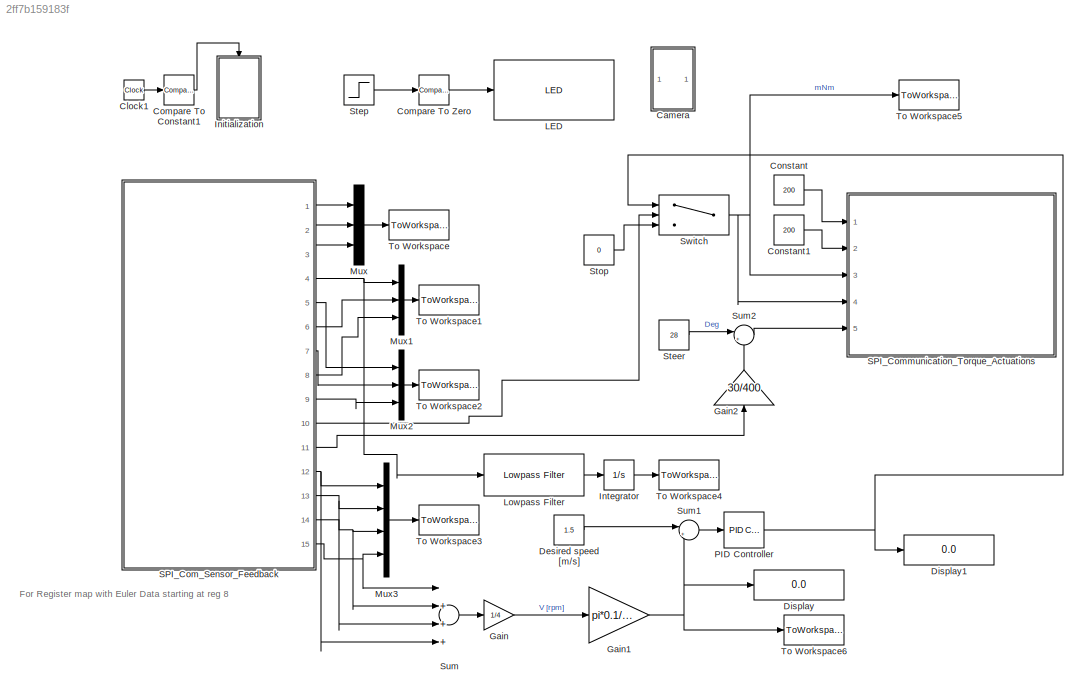
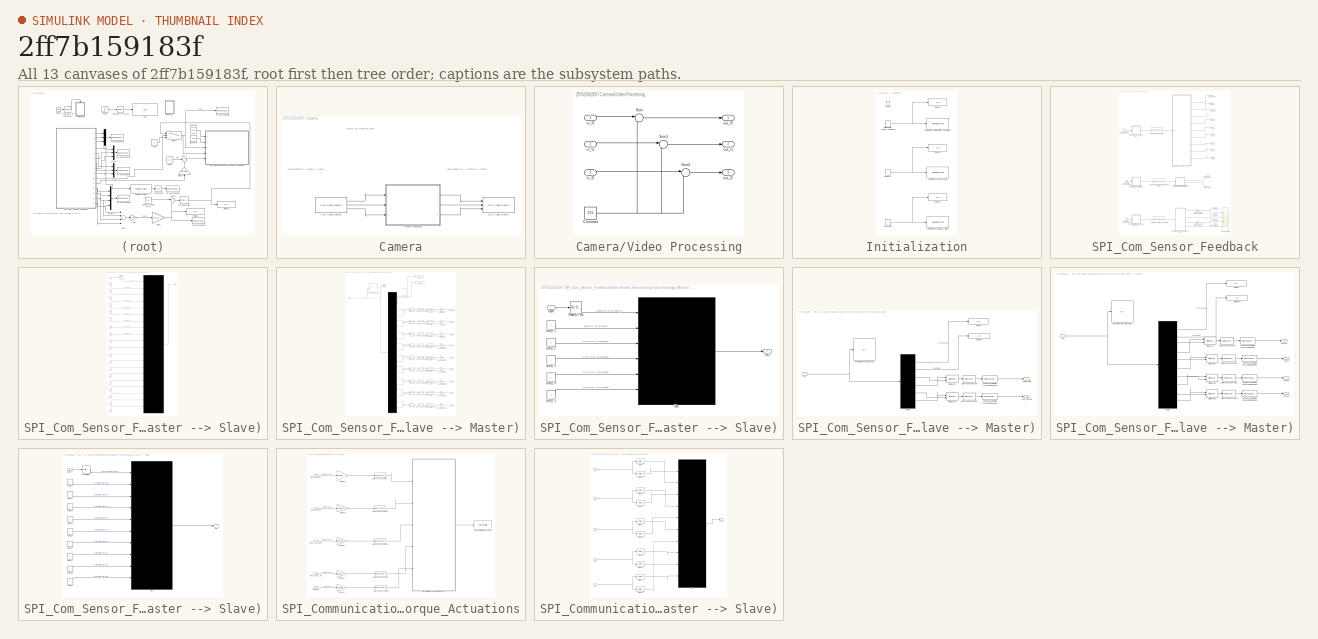
[diagram: thumbnail index - all 13 canvases of the model, root first then tree order]
MODEL slx_2ff7b159183f
KIND model
CONFIG AbsTol = auto
CONFIG EnableMultiTasking = on
CONFIG FixedStep = .015
CONFIG MaxStep = auto
CONFIG MinStep = auto
CONFIG RelTol = 1e-3
CONFIG SampleTimeConstraint = Unconstrained
CONFIG Solver = FixedStepAuto
CONFIG SolverName = FixedStepAuto
CONFIG StartTime = 0.0
CONFIG StopTime = inf
BLOCK [SubSystem] Camera
  Commented = on
  Ports = []
  RequestExecContextInheritance = off
BLOCK [Reference] Camera/SDL Video Display  REF=embdlinuxlib/SDL Video Display
  Ports = [3]
  SourceBlock = embdlinuxlib/SDL Video Display
  SourceProductBaseCode = RASPPI
  SourceProductName = Simulink Support Package for Raspberry Pi Hardware
  SourceType = SDL Video Display
BLOCK [Reference] Camera/V4L2 Video Capture  REF=embdlinuxlib/V4L2 Video Capture
  Ports = [0, 3]
  SourceBlock = embdlinuxlib/V4L2 Video Capture
  SourceProductBaseCode = RASPPI
  SourceProductName = Simulink Support Package for Raspberry Pi Hardware
  SourceType = V4L2 Video Capture
BLOCK [SubSystem] Camera/Video Processing
  Ports = [3, 3]
  RequestExecContextInheritance = off
BLOCK [Constant] Camera/Video Processing/Constant
  OutDataTypeStr = uint8
  Value = 255
BLOCK [Sum] Camera/Video Processing/Sum
  IconShape = round
  InputSameDT = off
  Inputs = |-+
  OutDataTypeStr = Inherit: Inherit via internal rule
  Ports = [2, 1]
  SaturateOnIntegerOverflow = off
BLOCK [Sum] Camera/Video Processing/Sum1
  IconShape = round
  InputSameDT = off
  Inputs = |-+
  OutDataTypeStr = Inherit: Inherit via internal rule
  Ports = [2, 1]
  SaturateOnIntegerOverflow = off
BLOCK [Sum] Camera/Video Processing/Sum2
  IconShape = round
  InputSameDT = off
  Inputs = |-+
  OutDataTypeStr = Inherit: Inherit via internal rule
  Ports = [2, 1]
  SaturateOnIntegerOverflow = off
BLOCK [Inport] Camera/Video Processing/in_B
  IconDisplay = Port number
  Port = 3
BLOCK [Inport] Camera/Video Processing/in_G
  IconDisplay = Port number
  Port = 2
BLOCK [Inport] Camera/Video Processing/in_R
  IconDisplay = Port number
BLOCK [Outport] Camera/Video Processing/out_B
  IconDisplay = Port number
  Port = 3
BLOCK [Outport] Camera/Video Processing/out_G
  IconDisplay = Port number
  Port = 2
BLOCK [Outport] Camera/Video Processing/out_R
  IconDisplay = Port number
BLOCK [Clock] Clock1
BLOCK [Reference] Compare To Constant1  REF=simulink/Logic and Bit
Operations/Compare
To Constant
  Ports = [1, 1]
  SourceBlock = simulink/Logic and Bit\nOperations/Compare\nTo Constant
  SourceProductBaseCode = SL
  SourceProductName = Simulink
  SourceType = Compare To Constant
BLOCK [Reference] Compare To Zero  REF=simulink/Logic and Bit
Operations/Compare
To Zero
  Ports = [1, 1]
  SourceBlock = simulink/Logic and Bit\nOperations/Compare\nTo Zero
  SourceProductBaseCode = SL
  SourceProductName = Simulink
  SourceType = Compare To Zero
BLOCK [Constant] Constant
  Value = 200
BLOCK [Constant] Constant1
  Value = 200
BLOCK [Constant] Desired speed [m//s]
  Value = 1.5
BLOCK [Display] Display
  Decimation = 1
  Ports = [1]
BLOCK [Display] Display1
  Decimation = 1
  Ports = [1]
BLOCK [Gain] Gain
  Gain = 1/4
  OutDataTypeStr = Inherit: Inherit via internal rule
  ParamDataTypeStr = Inherit: Inherit via internal rule
  SaturateOnIntegerOverflow = off
BLOCK [Gain] Gain1
  Gain = pi*0.1/60
  OutDataTypeStr = Inherit: Inherit via internal rule
  ParamDataTypeStr = Inherit: Inherit via internal rule
  SaturateOnIntegerOverflow = off
BLOCK [Gain] Gain2
  Gain = 30/400
  OutDataTypeStr = Inherit: Inherit via internal rule
  ParamDataTypeStr = Inherit: Inherit via internal rule
  SaturateOnIntegerOverflow = off
BLOCK [SubSystem] Initialization
  Ports = [0, 0, 1]
  RequestExecContextInheritance = off
BLOCK [Constant] Initialization/Dead Switch
  OutDataTypeStr = uint8
BLOCK [Display] Initialization/Display3
  Decimation = 1
  Format = decimal (Stored Integer)
  Ports = [1]
BLOCK [Display] Initialization/Display4
  Decimation = 1
  Format = decimal (Stored Integer)
  Ports = [1]
BLOCK [Display] Initialization/Display5
  Decimation = 1
  Format = decimal (Stored Integer)
  Ports = [1]
BLOCK [EnablePort] Initialization/Enable
  Ports = []
BLOCK [Constant] Initialization/IMU Reset
  OutDataTypeStr = uint8
BLOCK [Constant] Initialization/Initialize Motor Controllers Command
  OutDataTypeStr = uint8
BLOCK [Reference] Initialization/SPI Register Write dead_switch  REF=raspberrypilib/SPI Register Write
  Ports = [1]
  SourceBlock = raspberrypilib/SPI Register Write
  SourceProductBaseCode = RASPPI
  SourceProductName = Simulink Support Package for Raspberry Pi Hardware
  SourceType = codertarget.raspi.internal.SPIRegisterWrite
BLOCK [Reference] Initialization/SPI Register Write init_motor_controllers  REF=raspberrypilib/SPI Register Write
  Ports = [1]
  SourceBlock = raspberrypilib/SPI Register Write
  SourceProductBaseCode = RASPPI
  SourceProductName = Simulink Support Package for Raspberry Pi Hardware
  SourceType = codertarget.raspi.internal.SPIRegisterWrite
BLOCK [Reference] Initialization/SPI Register Write reset_imu  REF=raspberrypilib/SPI Register Write
  Ports = [1]
  SourceBlock = raspberrypilib/SPI Register Write
  SourceProductBaseCode = RASPPI
  SourceProductName = Simulink Support Package for Raspberry Pi Hardware
  SourceType = codertarget.raspi.internal.SPIRegisterWrite
BLOCK [Integrator] Integrator
  Ports = [1, 1]
BLOCK [Reference] LED  REF=embdlinuxlib/LED
  Ports = [1]
  SourceBlock = embdlinuxlib/LED
  SourceProductBaseCode = RASPPI
  SourceProductName = Simulink Support Package for Raspberry Pi Hardware
  SourceType = LED Write
BLOCK [Reference] Lowpass Filter  REF=dspfdesign/Lowpass Filter
  Ports = [1, 1]
  SourceBlock = dspfdesign/Lowpass Filter
  SourceProductBaseCode = DS
  SourceProductName = DSP System Toolbox
  SourceType = dsp.LowpassFilter
BLOCK [Mux] Mux
  DisplayOption = bar
  Inputs = 3
  Ports = [3, 1]
BLOCK [Mux] Mux1
  DisplayOption = bar
  Inputs = 3
  Ports = [3, 1]
BLOCK [Mux] Mux2
  DisplayOption = bar
  Inputs = 3
  Ports = [3, 1]
BLOCK [Mux] Mux3
  DisplayOption = bar
  Ports = [4, 1]
BLOCK [Reference] PID Controller  REF=simulink/Continuous/PID Controller
  Ports = [1, 1]
  SourceBlock = simulink/Continuous/PID Controller
  SourceProductBaseCode = SL
  SourceProductName = Simulink
  SourceType = PID 1dof
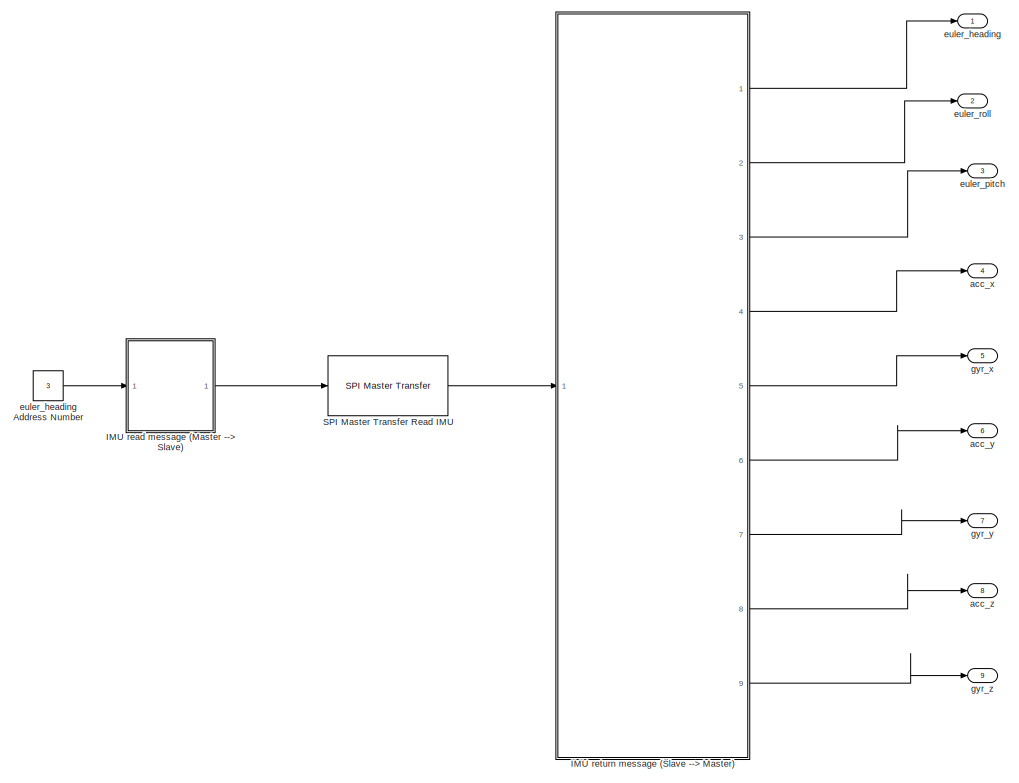
[diagram: SPI_Com_Sensor_Feedback - part 1/2, full width, top band]
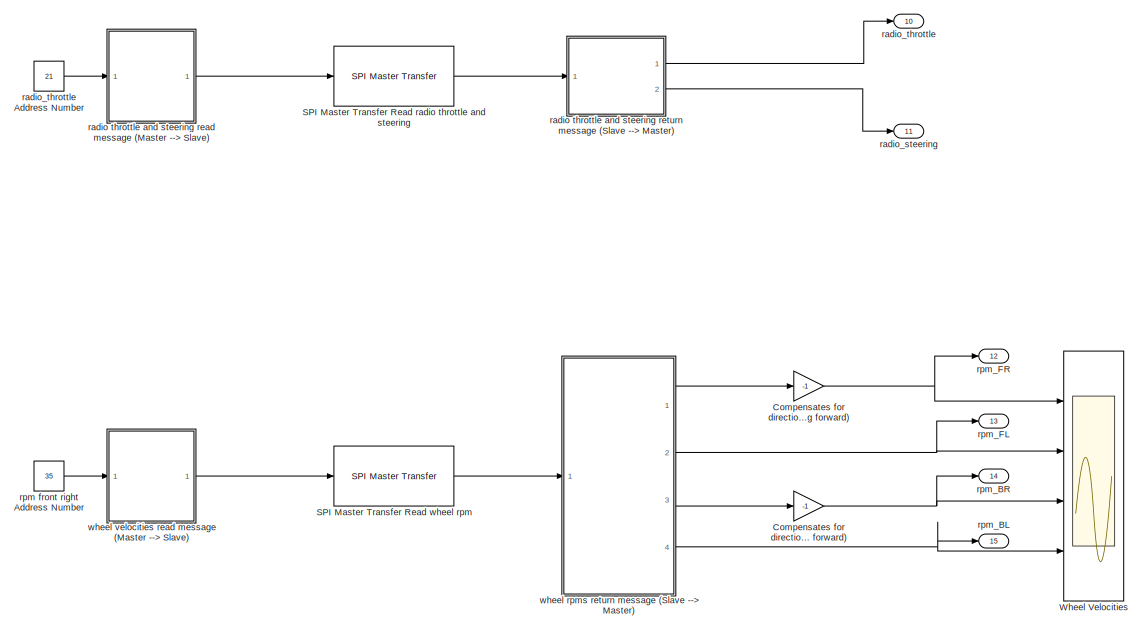
[diagram: SPI_Com_Sensor_Feedback - part 2/2, full width, bottom band]
BLOCK [SubSystem] SPI_Com_Sensor_Feedback
  Ports = [0, 15]
  RequestExecContextInheritance = off
BLOCK [Gain] SPI_Com_Sensor_Feedback/Compensates for direction of spin (want positive to be rolling forward)
  Gain = -1
  OutDataTypeStr = Inherit: Inherit via internal rule
  ParamDataTypeStr = Inherit: Inherit via internal rule
  SaturateOnIntegerOverflow = off
BLOCK [Gain] SPI_Com_Sensor_Feedback/Compensates for direction of spin (want positive to be rolling forward)  
  Gain = -1
  OutDataTypeStr = Inherit: Inherit via internal rule
  ParamDataTypeStr = Inherit: Inherit via internal rule
  SaturateOnIntegerOverflow = off
BLOCK [SubSystem] SPI_Com_Sensor_Feedback/IMU read message (Master --> Slave)
  Ports = [1, 1]
  RequestExecContextInheritance = off
BLOCK [Inport] SPI_Com_Sensor_Feedback/IMU read message (Master --> Slave)/Inport
  IconDisplay = Port number
BLOCK [Mux] SPI_Com_Sensor_Feedback/IMU read message (Master --> Slave)/Mux
  DisplayOption = signals
  Inputs = 20
  Ports = [20, 1]
BLOCK [Outport] SPI_Com_Sensor_Feedback/IMU read message (Master --> Slave)/Out1
  IconDisplay = Port number
BLOCK [Reference] SPI_Com_Sensor_Feedback/IMU read message (Master --> Slave)/Read Bit Set  REF=simulink/Logic and Bit
Operations/Bit Set
  Ports = [1, 1]
  SourceBlock = simulink/Logic and Bit\nOperations/Bit Set
  SourceProductBaseCode = SL
  SourceProductName = Simulink
  SourceType = Bit Set
BLOCK [Constant] SPI_Com_Sensor_Feedback/IMU read message (Master --> Slave)/uint8_t  1
  OutDataTypeStr = uint8
BLOCK [Constant] SPI_Com_Sensor_Feedback/IMU read message (Master --> Slave)/uint8_t  10
  OutDataTypeStr = uint8
BLOCK [Constant] SPI_Com_Sensor_Feedback/IMU read message (Master --> Slave)/uint8_t  11
  OutDataTypeStr = uint8
BLOCK [Constant] SPI_Com_Sensor_Feedback/IMU read message (Master --> Slave)/uint8_t  12
  OutDataTypeStr = uint8
BLOCK [Constant] SPI_Com_Sensor_Feedback/IMU read message (Master --> Slave)/uint8_t  13
  OutDataTypeStr = uint8
BLOCK [Constant] SPI_Com_Sensor_Feedback/IMU read message (Master --> Slave)/uint8_t  14
  OutDataTypeStr = uint8
BLOCK [Constant] SPI_Com_Sensor_Feedback/IMU read message (Master --> Slave)/uint8_t  15
  OutDataTypeStr = uint8
BLOCK [Constant] SPI_Com_Sensor_Feedback/IMU read message (Master --> Slave)/uint8_t  16
  OutDataTypeStr = uint8
BLOCK [Constant] SPI_Com_Sensor_Feedback/IMU read message (Master --> Slave)/uint8_t  17
  OutDataTypeStr = uint8
BLOCK [Constant] SPI_Com_Sensor_Feedback/IMU read message (Master --> Slave)/uint8_t  18
  OutDataTypeStr = uint8
BLOCK [Constant] SPI_Com_Sensor_Feedback/IMU read message (Master --> Slave)/uint8_t  19
  OutDataTypeStr = uint8
BLOCK [Constant] SPI_Com_Sensor_Feedback/IMU read message (Master --> Slave)/uint8_t  2
  OutDataTypeStr = uint8
BLOCK [Constant] SPI_Com_Sensor_Feedback/IMU read message (Master --> Slave)/uint8_t  3
  OutDataTypeStr = uint8
BLOCK [Constant] SPI_Com_Sensor_Feedback/IMU read message (Master --> Slave)/uint8_t  4
  OutDataTypeStr = uint8
BLOCK [Constant] SPI_Com_Sensor_Feedback/IMU read message (Master --> Slave)/uint8_t  5
  OutDataTypeStr = uint8
BLOCK [Constant] SPI_Com_Sensor_Feedback/IMU read message (Master --> Slave)/uint8_t  6
  OutDataTypeStr = uint8
BLOCK [Constant] SPI_Com_Sensor_Feedback/IMU read message (Master --> Slave)/uint8_t  7
  OutDataTypeStr = uint8
BLOCK [Constant] SPI_Com_Sensor_Feedback/IMU read message (Master --> Slave)/uint8_t  8
  OutDataTypeStr = uint8
BLOCK [Constant] SPI_Com_Sensor_Feedback/IMU read message (Master --> Slave)/uint8_t  9
  OutDataTypeStr = uint8
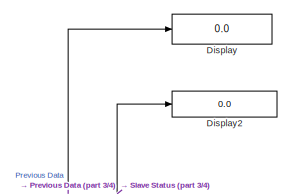
[diagram: SPI_Com_Sensor_Feedback/IMU return message (Slave --> Master) - part 1/4, top center region]
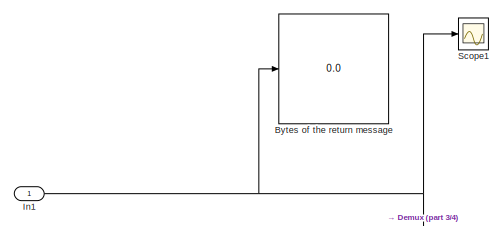
[diagram: SPI_Com_Sensor_Feedback/IMU return message (Slave --> Master) - part 2/4, top left region]
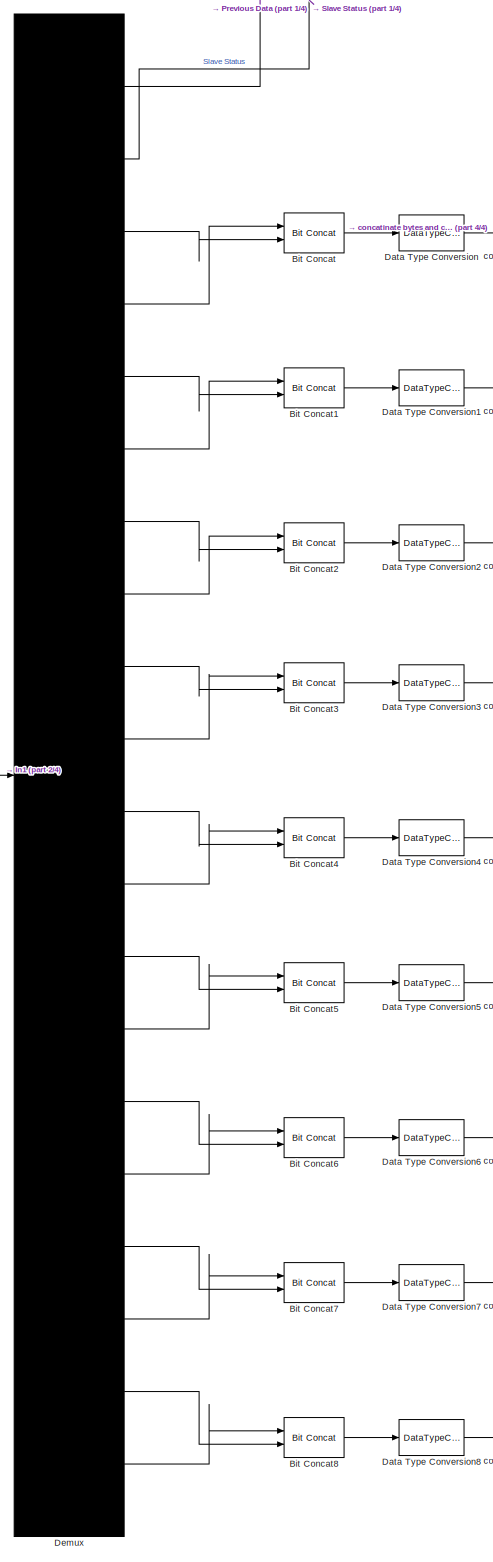
[diagram: SPI_Com_Sensor_Feedback/IMU return message (Slave --> Master) - part 3/4, center side, full height]
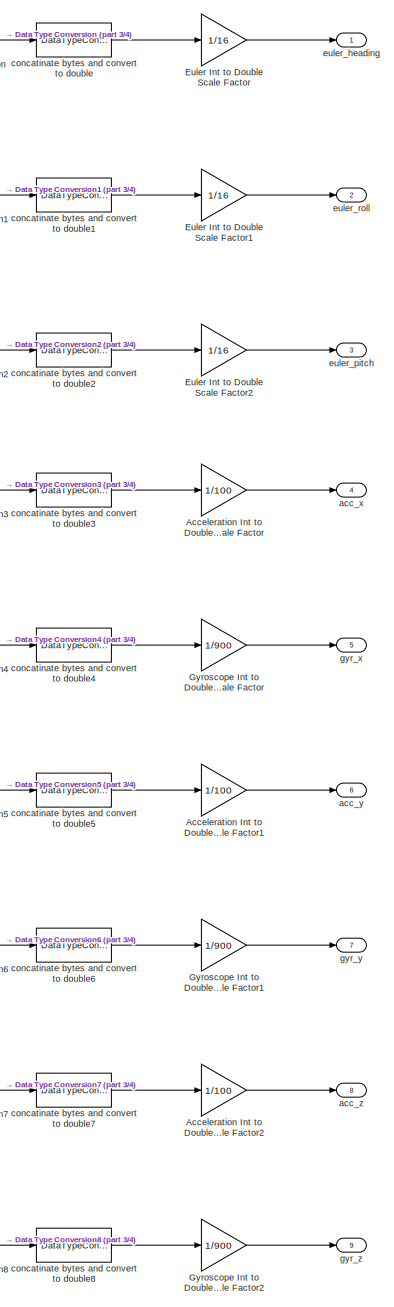
[diagram: SPI_Com_Sensor_Feedback/IMU return message (Slave --> Master) - part 4/4, middle right region]
BLOCK [SubSystem] SPI_Com_Sensor_Feedback/IMU return message (Slave --> Master)
  Ports = [1, 9]
  RequestExecContextInheritance = off
BLOCK [Gain] SPI_Com_Sensor_Feedback/IMU return message (Slave --> Master)/Acceleration Int to Double Scale Factor
  Gain = 1/100
  OutDataTypeStr = Inherit: Inherit via internal rule
  ParamDataTypeStr = Inherit: Inherit via internal rule
  SaturateOnIntegerOverflow = off
BLOCK [Gain] SPI_Com_Sensor_Feedback/IMU return message (Slave --> Master)/Acceleration Int to Double Scale Factor1
  Gain = 1/100
  OutDataTypeStr = Inherit: Inherit via internal rule
  ParamDataTypeStr = Inherit: Inherit via internal rule
  SaturateOnIntegerOverflow = off
BLOCK [Gain] SPI_Com_Sensor_Feedback/IMU return message (Slave --> Master)/Acceleration Int to Double Scale Factor2
  Gain = 1/100
  OutDataTypeStr = Inherit: Inherit via internal rule
  ParamDataTypeStr = Inherit: Inherit via internal rule
  SaturateOnIntegerOverflow = off
BLOCK [Reference] SPI_Com_Sensor_Feedback/IMU return message (Slave --> Master)/Bit Concat  REF=hdlsllib/Logic and Bit
Operations/Bit Concat
  Ports = [2, 1]
  SourceBlock = hdlsllib/Logic and Bit\nOperations/Bit Concat
  SourceProductBaseCode = HD
  SourceProductName = HDL Coder
  SourceType = Bit Concat
BLOCK [Reference] SPI_Com_Sensor_Feedback/IMU return message (Slave --> Master)/Bit Concat1  REF=hdlsllib/Logic and Bit
Operations/Bit Concat
  Ports = [2, 1]
  SourceBlock = hdlsllib/Logic and Bit\nOperations/Bit Concat
  SourceProductBaseCode = HD
  SourceProductName = HDL Coder
  SourceType = Bit Concat
BLOCK [Reference] SPI_Com_Sensor_Feedback/IMU return message (Slave --> Master)/Bit Concat2  REF=hdlsllib/Logic and Bit
Operations/Bit Concat
  Ports = [2, 1]
  SourceBlock = hdlsllib/Logic and Bit\nOperations/Bit Concat
  SourceProductBaseCode = HD
  SourceProductName = HDL Coder
  SourceType = Bit Concat
BLOCK [Reference] SPI_Com_Sensor_Feedback/IMU return message (Slave --> Master)/Bit Concat3  REF=hdlsllib/Logic and Bit
Operations/Bit Concat
  Ports = [2, 1]
  SourceBlock = hdlsllib/Logic and Bit\nOperations/Bit Concat
  SourceProductBaseCode = HD
  SourceProductName = HDL Coder
  SourceType = Bit Concat
BLOCK [Reference] SPI_Com_Sensor_Feedback/IMU return message (Slave --> Master)/Bit Concat4  REF=hdlsllib/Logic and Bit
Operations/Bit Concat
  Ports = [2, 1]
  SourceBlock = hdlsllib/Logic and Bit\nOperations/Bit Concat
  SourceProductBaseCode = HD
  SourceProductName = HDL Coder
  SourceType = Bit Concat
BLOCK [Reference] SPI_Com_Sensor_Feedback/IMU return message (Slave --> Master)/Bit Concat5  REF=hdlsllib/Logic and Bit
Operations/Bit Concat
  Ports = [2, 1]
  SourceBlock = hdlsllib/Logic and Bit\nOperations/Bit Concat
  SourceProductBaseCode = HD
  SourceProductName = HDL Coder
  SourceType = Bit Concat
BLOCK [Reference] SPI_Com_Sensor_Feedback/IMU return message (Slave --> Master)/Bit Concat6  REF=hdlsllib/Logic and Bit
Operations/Bit Concat
  Ports = [2, 1]
  SourceBlock = hdlsllib/Logic and Bit\nOperations/Bit Concat
  SourceProductBaseCode = HD
  SourceProductName = HDL Coder
  SourceType = Bit Concat
BLOCK [Reference] SPI_Com_Sensor_Feedback/IMU return message (Slave --> Master)/Bit Concat7  REF=hdlsllib/Logic and Bit
Operations/Bit Concat
  Ports = [2, 1]
  SourceBlock = hdlsllib/Logic and Bit\nOperations/Bit Concat
  SourceProductBaseCode = HD
  SourceProductName = HDL Coder
  SourceType = Bit Concat
BLOCK [Reference] SPI_Com_Sensor_Feedback/IMU return message (Slave --> Master)/Bit Concat8  REF=hdlsllib/Logic and Bit
Operations/Bit Concat
  Ports = [2, 1]
  SourceBlock = hdlsllib/Logic and Bit\nOperations/Bit Concat
  SourceProductBaseCode = HD
  SourceProductName = HDL Coder
  SourceType = Bit Concat
BLOCK [Display] SPI_Com_Sensor_Feedback/IMU return message (Slave --> Master)/Bytes of the return message
  Decimation = 1
  Format = decimal (Stored Integer)
  Ports = [1]
BLOCK [DataTypeConversion] SPI_Com_Sensor_Feedback/IMU return message (Slave --> Master)/Data Type Conversion
  OutDataTypeStr = int16
  RndMeth = Nearest
  SaturateOnIntegerOverflow = off
BLOCK [DataTypeConversion] SPI_Com_Sensor_Feedback/IMU return message (Slave --> Master)/Data Type Conversion1
  OutDataTypeStr = int16
  RndMeth = Nearest
  SaturateOnIntegerOverflow = off
BLOCK [DataTypeConversion] SPI_Com_Sensor_Feedback/IMU return message (Slave --> Master)/Data Type Conversion2
  OutDataTypeStr = int16
  RndMeth = Nearest
  SaturateOnIntegerOverflow = off
BLOCK [DataTypeConversion] SPI_Com_Sensor_Feedback/IMU return message (Slave --> Master)/Data Type Conversion3
  OutDataTypeStr = int16
  RndMeth = Nearest
  SaturateOnIntegerOverflow = off
BLOCK [DataTypeConversion] SPI_Com_Sensor_Feedback/IMU return message (Slave --> Master)/Data Type Conversion4
  OutDataTypeStr = int16
  RndMeth = Nearest
  SaturateOnIntegerOverflow = off
BLOCK [DataTypeConversion] SPI_Com_Sensor_Feedback/IMU return message (Slave --> Master)/Data Type Conversion5
  OutDataTypeStr = int16
  RndMeth = Nearest
  SaturateOnIntegerOverflow = off
BLOCK [DataTypeConversion] SPI_Com_Sensor_Feedback/IMU return message (Slave --> Master)/Data Type Conversion6
  OutDataTypeStr = int16
  RndMeth = Nearest
  SaturateOnIntegerOverflow = off
BLOCK [DataTypeConversion] SPI_Com_Sensor_Feedback/IMU return message (Slave --> Master)/Data Type Conversion7
  OutDataTypeStr = int16
  RndMeth = Nearest
  SaturateOnIntegerOverflow = off
BLOCK [DataTypeConversion] SPI_Com_Sensor_Feedback/IMU return message (Slave --> Master)/Data Type Conversion8
  OutDataTypeStr = int16
  RndMeth = Nearest
  SaturateOnIntegerOverflow = off
BLOCK [Demux] SPI_Com_Sensor_Feedback/IMU return message (Slave --> Master)/Demux
  Outputs = 20
  Ports = [1, 20]
BLOCK [Display] SPI_Com_Sensor_Feedback/IMU return message (Slave --> Master)/Display
  Decimation = 1
  Format = binary (Stored Integer)
  Ports = [1]
BLOCK [Display] SPI_Com_Sensor_Feedback/IMU return message (Slave --> Master)/Display2
  Decimation = 1
  Format = binary (Stored Integer)
  Ports = [1]
BLOCK [Gain] SPI_Com_Sensor_Feedback/IMU return message (Slave --> Master)/Euler Int to Double Scale Factor
  Gain = 1/16
  OutDataTypeStr = Inherit: Inherit via internal rule
  ParamDataTypeStr = Inherit: Inherit via internal rule
  SaturateOnIntegerOverflow = off
BLOCK [Gain] SPI_Com_Sensor_Feedback/IMU return message (Slave --> Master)/Euler Int to Double Scale Factor1
  Gain = 1/16
  OutDataTypeStr = Inherit: Inherit via internal rule
  ParamDataTypeStr = Inherit: Inherit via internal rule
  SaturateOnIntegerOverflow = off
BLOCK [Gain] SPI_Com_Sensor_Feedback/IMU return message (Slave --> Master)/Euler Int to Double Scale Factor2
  Gain = 1/16
  OutDataTypeStr = Inherit: Inherit via internal rule
  ParamDataTypeStr = Inherit: Inherit via internal rule
  SaturateOnIntegerOverflow = off
BLOCK [Gain] SPI_Com_Sensor_Feedback/IMU return message (Slave --> Master)/Gyroscope Int to Double Scale Factor
  Gain = 1/900
  OutDataTypeStr = Inherit: Inherit via internal rule
  ParamDataTypeStr = Inherit: Inherit via internal rule
  SaturateOnIntegerOverflow = off
BLOCK [Gain] SPI_Com_Sensor_Feedback/IMU return message (Slave --> Master)/Gyroscope Int to Double Scale Factor1
  Gain = 1/900
  OutDataTypeStr = Inherit: Inherit via internal rule
  ParamDataTypeStr = Inherit: Inherit via internal rule
  SaturateOnIntegerOverflow = off
BLOCK [Gain] SPI_Com_Sensor_Feedback/IMU return message (Slave --> Master)/Gyroscope Int to Double Scale Factor2
  Gain = 1/900
  OutDataTypeStr = Inherit: Inherit via internal rule
  ParamDataTypeStr = Inherit: Inherit via internal rule
  SaturateOnIntegerOverflow = off
BLOCK [Inport] SPI_Com_Sensor_Feedback/IMU return message (Slave --> Master)/In1
  IconDisplay = Port number
BLOCK [Scope] SPI_Com_Sensor_Feedback/IMU return message (Slave --> Master)/Scope1
  Floating = off
  NumInputPorts = 1
  Ports = [1]
  ScopeSpecificationString = Simulink.scopes.TimeScopeBlockCfg('CurrentConfiguration', extmgr.ConfigurationSet(extmgr.Configuration('Core','General UI',true),extmgr.Configuration('Core','Source UI',true),extmgr.Configuration('Sources','WiredSimulink',true,'DataLoggingVariableName','ScopeData10'),extmgr.Configuration('Visuals','Time Domain',true,'SerializedDisplays',{struct('MinYLimReal','-17.25','MaxYLimReal','155.25','YLabel...<+1454ch>
BLOCK [Outport] SPI_Com_Sensor_Feedback/IMU return message (Slave --> Master)/acc_x
  IconDisplay = Port number
  Port = 4
BLOCK [Outport] SPI_Com_Sensor_Feedback/IMU return message (Slave --> Master)/acc_y
  IconDisplay = Port number
  Port = 6
BLOCK [Outport] SPI_Com_Sensor_Feedback/IMU return message (Slave --> Master)/acc_z
  IconDisplay = Port number
  Port = 8
BLOCK [DataTypeConversion] SPI_Com_Sensor_Feedback/IMU return message (Slave --> Master)/concatinate bytes and convert to double
  LockScale = on
  OutDataTypeStr = double
  RndMeth = Nearest
  SaturateOnIntegerOverflow = off
BLOCK [DataTypeConversion] SPI_Com_Sensor_Feedback/IMU return message (Slave --> Master)/concatinate bytes and convert to double1
  LockScale = on
  OutDataTypeStr = double
  RndMeth = Nearest
  SaturateOnIntegerOverflow = off
BLOCK [DataTypeConversion] SPI_Com_Sensor_Feedback/IMU return message (Slave --> Master)/concatinate bytes and convert to double2
  LockScale = on
  OutDataTypeStr = double
  RndMeth = Nearest
  SaturateOnIntegerOverflow = off
BLOCK [DataTypeConversion] SPI_Com_Sensor_Feedback/IMU return message (Slave --> Master)/concatinate bytes and convert to double3
  LockScale = on
  OutDataTypeStr = double
  RndMeth = Nearest
  SaturateOnIntegerOverflow = off
BLOCK [DataTypeConversion] SPI_Com_Sensor_Feedback/IMU return message (Slave --> Master)/concatinate bytes and convert to double4
  LockScale = on
  OutDataTypeStr = double
  RndMeth = Nearest
  SaturateOnIntegerOverflow = off
BLOCK [DataTypeConversion] SPI_Com_Sensor_Feedback/IMU return message (Slave --> Master)/concatinate bytes and convert to double5
  LockScale = on
  OutDataTypeStr = double
  RndMeth = Nearest
  SaturateOnIntegerOverflow = off
BLOCK [DataTypeConversion] SPI_Com_Sensor_Feedback/IMU return message (Slave --> Master)/concatinate bytes and convert to double6
  LockScale = on
  OutDataTypeStr = double
  RndMeth = Nearest
  SaturateOnIntegerOverflow = off
BLOCK [DataTypeConversion] SPI_Com_Sensor_Feedback/IMU return message (Slave --> Master)/concatinate bytes and convert to double7
  LockScale = on
  OutDataTypeStr = double
  RndMeth = Nearest
  SaturateOnIntegerOverflow = off
BLOCK [DataTypeConversion] SPI_Com_Sensor_Feedback/IMU return message (Slave --> Master)/concatinate bytes and convert to double8
  LockScale = on
  OutDataTypeStr = double
  RndMeth = Nearest
  SaturateOnIntegerOverflow = off
BLOCK [Outport] SPI_Com_Sensor_Feedback/IMU return message (Slave --> Master)/euler_heading
  IconDisplay = Port number
BLOCK [Outport] SPI_Com_Sensor_Feedback/IMU return message (Slave --> Master)/euler_pitch
  IconDisplay = Port number
  Port = 3
BLOCK [Outport] SPI_Com_Sensor_Feedback/IMU return message (Slave --> Master)/euler_roll
  IconDisplay = Port number
  Port = 2
BLOCK [Outport] SPI_Com_Sensor_Feedback/IMU return message (Slave --> Master)/gyr_x
  IconDisplay = Port number
  Port = 5
BLOCK [Outport] SPI_Com_Sensor_Feedback/IMU return message (Slave --> Master)/gyr_y
  IconDisplay = Port number
  Port = 7
BLOCK [Outport] SPI_Com_Sensor_Feedback/IMU return message (Slave --> Master)/gyr_z
  IconDisplay = Port number
  Port = 9
BLOCK [Reference] SPI_Com_Sensor_Feedback/SPI Master Transfer Read IMU  REF=raspberrypilib/SPI Master Transfer
  Ports = [1, 1]
  SourceBlock = raspberrypilib/SPI Master Transfer
  SourceProductBaseCode = RASPPI
  SourceProductName = Simulink Support Package for Raspberry Pi Hardware
  SourceType = codertarget.raspi.internal.SPIMasterTransfer
BLOCK [Reference] SPI_Com_Sensor_Feedback/SPI Master Transfer Read radio throttle and steering  REF=raspberrypilib/SPI Master Transfer
  Ports = [1, 1]
  SourceBlock = raspberrypilib/SPI Master Transfer
  SourceProductBaseCode = RASPPI
  SourceProductName = Simulink Support Package for Raspberry Pi Hardware
  SourceType = codertarget.raspi.internal.SPIMasterTransfer
BLOCK [Reference] SPI_Com_Sensor_Feedback/SPI Master Transfer Read wheel rpm  REF=raspberrypilib/SPI Master Transfer
  Ports = [1, 1]
  SourceBlock = raspberrypilib/SPI Master Transfer
  SourceProductBaseCode = RASPPI
  SourceProductName = Simulink Support Package for Raspberry Pi Hardware
  SourceType = codertarget.raspi.internal.SPIMasterTransfer
BLOCK [Scope] SPI_Com_Sensor_Feedback/Wheel Velocities
  Floating = off
  NumInputPorts = 4
  Ports = [4]
  ScopeSpecificationString = Simulink.scopes.TimeScopeBlockCfg('CurrentConfiguration', extmgr.ConfigurationSet(extmgr.Configuration('Core','General UI',true),extmgr.Configuration('Core','Source UI',true),extmgr.Configuration('Sources','WiredSimulink',true,'DataLoggingVariableName','ScopeData1'),extmgr.Configuration('Visuals','Time Domain',true,'SerializedDisplays',{struct('MinYLimReal','-97.5','MaxYLimReal','117.5','YLabelRea...<+3633ch>
BLOCK [Outport] SPI_Com_Sensor_Feedback/acc_x
  IconDisplay = Port number
  Port = 4
BLOCK [Outport] SPI_Com_Sensor_Feedback/acc_y
  IconDisplay = Port number
  Port = 6
BLOCK [Outport] SPI_Com_Sensor_Feedback/acc_z
  IconDisplay = Port number
  Port = 8
BLOCK [Outport] SPI_Com_Sensor_Feedback/euler_heading
  IconDisplay = Port number
BLOCK [Constant] SPI_Com_Sensor_Feedback/euler_heading Address Number
  OutDataTypeStr = uint8
  Value = 3
BLOCK [Outport] SPI_Com_Sensor_Feedback/euler_pitch
  IconDisplay = Port number
  Port = 3
BLOCK [Outport] SPI_Com_Sensor_Feedback/euler_roll
  IconDisplay = Port number
  Port = 2
BLOCK [Outport] SPI_Com_Sensor_Feedback/gyr_x
  IconDisplay = Port number
  Port = 5
BLOCK [Outport] SPI_Com_Sensor_Feedback/gyr_y
  IconDisplay = Port number
  Port = 7
BLOCK [Outport] SPI_Com_Sensor_Feedback/gyr_z
  IconDisplay = Port number
  Port = 9
BLOCK [SubSystem] SPI_Com_Sensor_Feedback/radio throttle and steering read message (Master --> Slave)
  Ports = [1, 1]
  RequestExecContextInheritance = off
BLOCK [Inport] SPI_Com_Sensor_Feedback/radio throttle and steering read message (Master --> Slave)/Inport
  IconDisplay = Port number
BLOCK [Mux] SPI_Com_Sensor_Feedback/radio throttle and steering read message (Master --> Slave)/Mux
  DisplayOption = signals
  Inputs = 6
  Ports = [6, 1]
BLOCK [Outport] SPI_Com_Sensor_Feedback/radio throttle and steering read message (Master --> Slave)/Out1
  IconDisplay = Port number
BLOCK [Reference] SPI_Com_Sensor_Feedback/radio throttle and steering read message (Master --> Slave)/Read Bit Set  REF=simulink/Logic and Bit
Operations/Bit Set
  Ports = [1, 1]
  SourceBlock = simulink/Logic and Bit\nOperations/Bit Set
  SourceProductBaseCode = SL
  SourceProductName = Simulink
  SourceType = Bit Set
BLOCK [Constant] SPI_Com_Sensor_Feedback/radio throttle and steering read message (Master --> Slave)/uint8_t 1
  OutDataTypeStr = uint8
BLOCK [Constant] SPI_Com_Sensor_Feedback/radio throttle and steering read message (Master --> Slave)/uint8_t 2
  OutDataTypeStr = uint8
BLOCK [Constant] SPI_Com_Sensor_Feedback/radio throttle and steering read message (Master --> Slave)/uint8_t 3
  OutDataTypeStr = uint8
BLOCK [Constant] SPI_Com_Sensor_Feedback/radio throttle and steering read message (Master --> Slave)/uint8_t 4
  OutDataTypeStr = uint8
BLOCK [Constant] SPI_Com_Sensor_Feedback/radio throttle and steering read message (Master --> Slave)/uint8_t 5
  OutDataTypeStr = uint8
BLOCK [SubSystem] SPI_Com_Sensor_Feedback/radio throttle and steering return message (Slave --> Master)
  Ports = [1, 2]
  RequestExecContextInheritance = off
BLOCK [DataTypeConversion] SPI_Com_Sensor_Feedback/radio throttle and steering return message (Slave --> Master)/8 bytes concatinated converted to double
  OutDataTypeStr = double
  RndMeth = Nearest
  SaturateOnIntegerOverflow = off
BLOCK [DataTypeConversion] SPI_Com_Sensor_Feedback/radio throttle and steering return message (Slave --> Master)/8 bytes concatinated converted to double1
  OutDataTypeStr = double
  RndMeth = Nearest
  SaturateOnIntegerOverflow = off
BLOCK [Reference] SPI_Com_Sensor_Feedback/radio throttle and steering return message (Slave --> Master)/Bit Concat  REF=hdlsllib/Logic and Bit
Operations/Bit Concat
  Ports = [2, 1]
  SourceBlock = hdlsllib/Logic and Bit\nOperations/Bit Concat
  SourceProductBaseCode = HD
  SourceProductName = HDL Coder
  SourceType = Bit Concat
BLOCK [Reference] SPI_Com_Sensor_Feedback/radio throttle and steering return message (Slave --> Master)/Bit Concat1  REF=hdlsllib/Logic and Bit
Operations/Bit Concat
  Ports = [2, 1]
  SourceBlock = hdlsllib/Logic and Bit\nOperations/Bit Concat
  SourceProductBaseCode = HD
  SourceProductName = HDL Coder
  SourceType = Bit Concat
BLOCK [Display] SPI_Com_Sensor_Feedback/radio throttle and steering return message (Slave --> Master)/Bytes of the return message
  Decimation = 1
  Format = decimal (Stored Integer)
  Ports = [1]
BLOCK [DataTypeConversion] SPI_Com_Sensor_Feedback/radio throttle and steering return message (Slave --> Master)/Data Type Conversion
  OutDataTypeStr = int16
  RndMeth = Nearest
  SaturateOnIntegerOverflow = off
BLOCK [DataTypeConversion] SPI_Com_Sensor_Feedback/radio throttle and steering return message (Slave --> Master)/Data Type Conversion1
  OutDataTypeStr = int16
  RndMeth = Nearest
  SaturateOnIntegerOverflow = off
BLOCK [Demux] SPI_Com_Sensor_Feedback/radio throttle and steering return message (Slave --> Master)/Demux
  Outputs = 6
  Ports = [1, 6]
BLOCK [Display] SPI_Com_Sensor_Feedback/radio throttle and steering return message (Slave --> Master)/Display
  Decimation = 1
  Format = binary (Stored Integer)
  Ports = [1]
BLOCK [Display] SPI_Com_Sensor_Feedback/radio throttle and steering return message (Slave --> Master)/Display2
  Decimation = 1
  Format = binary (Stored Integer)
  Ports = [1]
BLOCK [Inport] SPI_Com_Sensor_Feedback/radio throttle and steering return message (Slave --> Master)/In1
  IconDisplay = Port number
BLOCK [Outport] SPI_Com_Sensor_Feedback/radio throttle and steering return message (Slave --> Master)/radio_steering
  IconDisplay = Port number
  Port = 2
BLOCK [Outport] SPI_Com_Sensor_Feedback/radio throttle and steering return message (Slave --> Master)/radio_throttle
  IconDisplay = Port number
BLOCK [Outport] SPI_Com_Sensor_Feedback/radio_steering
  IconDisplay = Port number
  Port = 11
BLOCK [Outport] SPI_Com_Sensor_Feedback/radio_throttle
  IconDisplay = Port number
  Port = 10
BLOCK [Constant] SPI_Com_Sensor_Feedback/radio_throttle Address Number 
  OutDataTypeStr = uint8
  Value = 21
BLOCK [Constant] SPI_Com_Sensor_Feedback/rpm front right Address Number 
  OutDataTypeStr = uint8
  Value = 35
BLOCK [Outport] SPI_Com_Sensor_Feedback/rpm_BL
  IconDisplay = Port number
  Port = 15
BLOCK [Outport] SPI_Com_Sensor_Feedback/rpm_BR
  IconDisplay = Port number
  Port = 14
BLOCK [Outport] SPI_Com_Sensor_Feedback/rpm_FL
  IconDisplay = Port number
  Port = 13
BLOCK [Outport] SPI_Com_Sensor_Feedback/rpm_FR
  IconDisplay = Port number
  Port = 12
BLOCK [SubSystem] SPI_Com_Sensor_Feedback/wheel rpms return message (Slave --> Master)
  Ports = [1, 4]
  RequestExecContextInheritance = off
BLOCK [DataTypeConversion] SPI_Com_Sensor_Feedback/wheel rpms return message (Slave --> Master)/8 bytes concatinated converted to double
  OutDataTypeStr = double
  RndMeth = Nearest
  SaturateOnIntegerOverflow = off
BLOCK [DataTypeConversion] SPI_Com_Sensor_Feedback/wheel rpms return message (Slave --> Master)/8 bytes concatinated converted to double1
  OutDataTypeStr = double
  RndMeth = Nearest
  SaturateOnIntegerOverflow = off
BLOCK [DataTypeConversion] SPI_Com_Sensor_Feedback/wheel rpms return message (Slave --> Master)/8 bytes concatinated converted to double2
  OutDataTypeStr = double
  RndMeth = Nearest
  SaturateOnIntegerOverflow = off
BLOCK [DataTypeConversion] SPI_Com_Sensor_Feedback/wheel rpms return message (Slave --> Master)/8 bytes concatinated converted to double3
  OutDataTypeStr = double
  RndMeth = Nearest
  SaturateOnIntegerOverflow = off
BLOCK [Reference] SPI_Com_Sensor_Feedback/wheel rpms return message (Slave --> Master)/Bit Concat  REF=hdlsllib/Logic and Bit
Operations/Bit Concat
  Ports = [2, 1]
  SourceBlock = hdlsllib/Logic and Bit\nOperations/Bit Concat
  SourceProductBaseCode = HD
  SourceProductName = HDL Coder
  SourceType = Bit Concat
BLOCK [Reference] SPI_Com_Sensor_Feedback/wheel rpms return message (Slave --> Master)/Bit Concat1  REF=hdlsllib/Logic and Bit
Operations/Bit Concat
  Ports = [2, 1]
  SourceBlock = hdlsllib/Logic and Bit\nOperations/Bit Concat
  SourceProductBaseCode = HD
  SourceProductName = HDL Coder
  SourceType = Bit Concat
BLOCK [Reference] SPI_Com_Sensor_Feedback/wheel rpms return message (Slave --> Master)/Bit Concat2  REF=hdlsllib/Logic and Bit
Operations/Bit Concat
  Ports = [2, 1]
  SourceBlock = hdlsllib/Logic and Bit\nOperations/Bit Concat
  SourceProductBaseCode = HD
  SourceProductName = HDL Coder
  SourceType = Bit Concat
BLOCK [Reference] SPI_Com_Sensor_Feedback/wheel rpms return message (Slave --> Master)/Bit Concat3  REF=hdlsllib/Logic and Bit
Operations/Bit Concat
  Ports = [2, 1]
  SourceBlock = hdlsllib/Logic and Bit\nOperations/Bit Concat
  SourceProductBaseCode = HD
  SourceProductName = HDL Coder
  SourceType = Bit Concat
BLOCK [Display] SPI_Com_Sensor_Feedback/wheel rpms return message (Slave --> Master)/Bytes of the return message
  Decimation = 1
  Format = decimal (Stored Integer)
  Ports = [1]
BLOCK [DataTypeConversion] SPI_Com_Sensor_Feedback/wheel rpms return message (Slave --> Master)/Data Type Conversion
  OutDataTypeStr = int16
  RndMeth = Nearest
  SaturateOnIntegerOverflow = off
BLOCK [DataTypeConversion] SPI_Com_Sensor_Feedback/wheel rpms return message (Slave --> Master)/Data Type Conversion1
  OutDataTypeStr = int16
  RndMeth = Nearest
  SaturateOnIntegerOverflow = off
BLOCK [DataTypeConversion] SPI_Com_Sensor_Feedback/wheel rpms return message (Slave --> Master)/Data Type Conversion2
  OutDataTypeStr = int16
  RndMeth = Nearest
  SaturateOnIntegerOverflow = off
BLOCK [DataTypeConversion] SPI_Com_Sensor_Feedback/wheel rpms return message (Slave --> Master)/Data Type Conversion3
  OutDataTypeStr = int16
  RndMeth = Nearest
  SaturateOnIntegerOverflow = off
BLOCK [Demux] SPI_Com_Sensor_Feedback/wheel rpms return message (Slave --> Master)/Demux
  Outputs = 10
  Ports = [1, 10]
BLOCK [Display] SPI_Com_Sensor_Feedback/wheel rpms return message (Slave --> Master)/Display
  Decimation = 1
  Format = binary (Stored Integer)
  Ports = [1]
BLOCK [Display] SPI_Com_Sensor_Feedback/wheel rpms return message (Slave --> Master)/Display2
  Decimation = 1
  Format = binary (Stored Integer)
  Ports = [1]
BLOCK [Inport] SPI_Com_Sensor_Feedback/wheel rpms return message (Slave --> Master)/In1
  IconDisplay = Port number
BLOCK [Outport] SPI_Com_Sensor_Feedback/wheel rpms return message (Slave --> Master)/rpm_BL
  IconDisplay = Port number
  Port = 4
BLOCK [Outport] SPI_Com_Sensor_Feedback/wheel rpms return message (Slave --> Master)/rpm_BR
  IconDisplay = Port number
  Port = 3
BLOCK [Outport] SPI_Com_Sensor_Feedback/wheel rpms return message (Slave --> Master)/rpm_FL
  IconDisplay = Port number
  Port = 2
BLOCK [Outport] SPI_Com_Sensor_Feedback/wheel rpms return message (Slave --> Master)/rpm_FR
  IconDisplay = Port number
BLOCK [SubSystem] SPI_Com_Sensor_Feedback/wheel velocities read message (Master --> Slave)
  Ports = [1, 1]
  RequestExecContextInheritance = off
BLOCK [Inport] SPI_Com_Sensor_Feedback/wheel velocities read message (Master --> Slave)/Inport
  IconDisplay = Port number
BLOCK [Mux] SPI_Com_Sensor_Feedback/wheel velocities read message (Master --> Slave)/Mux
  DisplayOption = signals
  Inputs = 10
  Ports = [10, 1]
BLOCK [Outport] SPI_Com_Sensor_Feedback/wheel velocities read message (Master --> Slave)/Out1
  IconDisplay = Port number
BLOCK [Reference] SPI_Com_Sensor_Feedback/wheel velocities read message (Master --> Slave)/Read Bit Set  REF=simulink/Logic and Bit
Operations/Bit Set
  Ports = [1, 1]
  SourceBlock = simulink/Logic and Bit\nOperations/Bit Set
  SourceProductBaseCode = SL
  SourceProductName = Simulink
  SourceType = Bit Set
BLOCK [Constant] SPI_Com_Sensor_Feedback/wheel velocities read message (Master --> Slave)/uint8_t 1
  OutDataTypeStr = uint8
BLOCK [Constant] SPI_Com_Sensor_Feedback/wheel velocities read message (Master --> Slave)/uint8_t 2
  OutDataTypeStr = uint8
BLOCK [Constant] SPI_Com_Sensor_Feedback/wheel velocities read message (Master --> Slave)/uint8_t 3
  OutDataTypeStr = uint8
BLOCK [Constant] SPI_Com_Sensor_Feedback/wheel velocities read message (Master --> Slave)/uint8_t 4
  OutDataTypeStr = uint8
BLOCK [Constant] SPI_Com_Sensor_Feedback/wheel velocities read message (Master --> Slave)/uint8_t 5
  OutDataTypeStr = uint8
BLOCK [Constant] SPI_Com_Sensor_Feedback/wheel velocities read message (Master --> Slave)/uint8_t 6
  OutDataTypeStr = uint8
BLOCK [Constant] SPI_Com_Sensor_Feedback/wheel velocities read message (Master --> Slave)/uint8_t 7
  OutDataTypeStr = uint8
BLOCK [Constant] SPI_Com_Sensor_Feedback/wheel velocities read message (Master --> Slave)/uint8_t 8
  OutDataTypeStr = uint8
BLOCK [Constant] SPI_Com_Sensor_Feedback/wheel velocities read message (Master --> Slave)/uint8_t 9
  OutDataTypeStr = uint8
BLOCK [SubSystem] SPI_Communication_Torque_Actuations
  Ports = [5]
  RequestExecContextInheritance = off
BLOCK [DataTypeConversion] SPI_Communication_Torque_Actuations/Data Type Conversion1
  OutDataTypeStr = int16
  RndMeth = Nearest
  SaturateOnIntegerOverflow = off
BLOCK [DataTypeConversion] SPI_Communication_Torque_Actuations/Data Type Conversion4
  LockScale = on
  OutDataTypeStr = int16
  RndMeth = Nearest
  SaturateOnIntegerOverflow = off
BLOCK [DataTypeConversion] SPI_Communication_Torque_Actuations/Data Type Conversion5
  OutDataTypeStr = int16
  RndMeth = Nearest
  SaturateOnIntegerOverflow = off
BLOCK [DataTypeConversion] SPI_Communication_Torque_Actuations/Data Type Conversion6
  OutDataTypeStr = int16
  RndMeth = Nearest
  SaturateOnIntegerOverflow = off
BLOCK [DataTypeConversion] SPI_Communication_Torque_Actuations/Data Type Conversion7
  OutDataTypeStr = int16
  RndMeth = Nearest
  SaturateOnIntegerOverflow = off
BLOCK [Reference] SPI_Communication_Torque_Actuations/SPI Register Write torque values  REF=raspberrypilib/SPI Register Write
  Ports = [1]
  SourceBlock = raspberrypilib/SPI Register Write
  SourceProductBaseCode = RASPPI
  SourceProductName = Simulink Support Package for Raspberry Pi Hardware
  SourceType = codertarget.raspi.internal.SPIRegisterWrite
BLOCK [Inport] SPI_Communication_Torque_Actuations/Steer angle
  IconDisplay = Port number
  Port = 5
BLOCK [Gain] SPI_Communication_Torque_Actuations/bits//mNm   2
  Gain = 1000/118.5
  OutDataTypeStr = Inherit: Inherit via internal rule
  ParamDataTypeStr = Inherit: Inherit via internal rule
  SaturateOnIntegerOverflow = off
BLOCK [Gain] SPI_Communication_Torque_Actuations/bits//mNm  1
  Gain = 1000/118.5
  OutDataTypeStr = Inherit: Inherit via internal rule
  ParamDataTypeStr = Inherit: Inherit via internal rule
  SaturateOnIntegerOverflow = off
BLOCK [Gain] SPI_Communication_Torque_Actuations/bits//mNm 1
  Gain = 1000/118.5
  OutDataTypeStr = Inherit: Inherit via internal rule
  ParamDataTypeStr = Inherit: Inherit via internal rule
  SaturateOnIntegerOverflow = off
BLOCK [Gain] SPI_Communication_Torque_Actuations/bits//mNm1
  Gain = 1000/118.5
  OutDataTypeStr = Inherit: Inherit via internal rule
  ParamDataTypeStr = Inherit: Inherit via internal rule
  SaturateOnIntegerOverflow = off
BLOCK [Gain] SPI_Communication_Torque_Actuations/gain//deg
  Gain = 500/25
  OutDataTypeStr = Inherit: Inherit via internal rule
  ParamDataTypeStr = Inherit: Inherit via internal rule
  SaturateOnIntegerOverflow = off
BLOCK [SubSystem] SPI_Communication_Torque_Actuations/torque Write Message (Master --> Slave)
  Ports = [5, 1]
  RequestExecContextInheritance = off
BLOCK [Reference] SPI_Communication_Torque_Actuations/torque Write Message (Master --> Slave)/Bit Slice  REF=hdlsllib/Logic and Bit
Operations/Bit Slice
  Ports = [1, 1]
  SourceBlock = hdlsllib/Logic and Bit\nOperations/Bit Slice
  SourceProductBaseCode = HD
  SourceProductName = HDL Coder
  SourceType = Bit Slice
BLOCK [Reference] SPI_Communication_Torque_Actuations/torque Write Message (Master --> Slave)/Bit Slice1  REF=hdlsllib/Logic and Bit
Operations/Bit Slice
  Ports = [1, 1]
  SourceBlock = hdlsllib/Logic and Bit\nOperations/Bit Slice
  SourceProductBaseCode = HD
  SourceProductName = HDL Coder
  SourceType = Bit Slice
BLOCK [Reference] SPI_Communication_Torque_Actuations/torque Write Message (Master --> Slave)/Bit Slice2  REF=hdlsllib/Logic and Bit
Operations/Bit Slice
  Ports = [1, 1]
  SourceBlock = hdlsllib/Logic and Bit\nOperations/Bit Slice
  SourceProductBaseCode = HD
  SourceProductName = HDL Coder
  SourceType = Bit Slice
BLOCK [Reference] SPI_Communication_Torque_Actuations/torque Write Message (Master --> Slave)/Bit Slice3  REF=hdlsllib/Logic and Bit
Operations/Bit Slice
  Ports = [1, 1]
  SourceBlock = hdlsllib/Logic and Bit\nOperations/Bit Slice
  SourceProductBaseCode = HD
  SourceProductName = HDL Coder
  SourceType = Bit Slice
BLOCK [Reference] SPI_Communication_Torque_Actuations/torque Write Message (Master --> Slave)/Bit Slice4  REF=hdlsllib/Logic and Bit
Operations/Bit Slice
  Ports = [1, 1]
  SourceBlock = hdlsllib/Logic and Bit\nOperations/Bit Slice
  SourceProductBaseCode = HD
  SourceProductName = HDL Coder
  SourceType = Bit Slice
BLOCK [Reference] SPI_Communication_Torque_Actuations/torque Write Message (Master --> Slave)/Bit Slice5  REF=hdlsllib/Logic and Bit
Operations/Bit Slice
  Ports = [1, 1]
  SourceBlock = hdlsllib/Logic and Bit\nOperations/Bit Slice
  SourceProductBaseCode = HD
  SourceProductName = HDL Coder
  SourceType = Bit Slice
BLOCK [Reference] SPI_Communication_Torque_Actuations/torque Write Message (Master --> Slave)/Bit Slice6  REF=hdlsllib/Logic and Bit
Operations/Bit Slice
  Ports = [1, 1]
  SourceBlock = hdlsllib/Logic and Bit\nOperations/Bit Slice
  SourceProductBaseCode = HD
  SourceProductName = HDL Coder
  SourceType = Bit Slice
BLOCK [Reference] SPI_Communication_Torque_Actuations/torque Write Message (Master --> Slave)/Bit Slice7  REF=hdlsllib/Logic and Bit
Operations/Bit Slice
  Ports = [1, 1]
  SourceBlock = hdlsllib/Logic and Bit\nOperations/Bit Slice
  SourceProductBaseCode = HD
  SourceProductName = HDL Coder
  SourceType = Bit Slice
BLOCK [Reference] SPI_Communication_Torque_Actuations/torque Write Message (Master --> Slave)/Bit Slice8  REF=hdlsllib/Logic and Bit
Operations/Bit Slice
  Ports = [1, 1]
  SourceBlock = hdlsllib/Logic and Bit\nOperations/Bit Slice
  SourceProductBaseCode = HD
  SourceProductName = HDL Coder
  SourceType = Bit Slice
BLOCK [Reference] SPI_Communication_Torque_Actuations/torque Write Message (Master --> Slave)/Bit Slice9  REF=hdlsllib/Logic and Bit
Operations/Bit Slice
  Ports = [1, 1]
  SourceBlock = hdlsllib/Logic and Bit\nOperations/Bit Slice
  SourceProductBaseCode = HD
  SourceProductName = HDL Coder
  SourceType = Bit Slice
BLOCK [Inport] SPI_Communication_Torque_Actuations/torque Write Message (Master --> Slave)/In1
  IconDisplay = Port number
BLOCK [Inport] SPI_Communication_Torque_Actuations/torque Write Message (Master --> Slave)/In2
  IconDisplay = Port number
  Port = 2
BLOCK [Inport] SPI_Communication_Torque_Actuations/torque Write Message (Master --> Slave)/In3
  IconDisplay = Port number
  Port = 3
BLOCK [Inport] SPI_Communication_Torque_Actuations/torque Write Message (Master --> Slave)/In4
  IconDisplay = Port number
  Port = 4
BLOCK [Inport] SPI_Communication_Torque_Actuations/torque Write Message (Master --> Slave)/In5
  IconDisplay = Port number
  Port = 5
BLOCK [Mux] SPI_Communication_Torque_Actuations/torque Write Message (Master --> Slave)/Mux
  DisplayOption = signals
  Inputs = 10
  Ports = [10, 1]
BLOCK [Outport] SPI_Communication_Torque_Actuations/torque Write Message (Master --> Slave)/Output
  IconDisplay = Port number
BLOCK [Inport] SPI_Communication_Torque_Actuations/torque_back_left
  IconDisplay = Port number
  Port = 4
BLOCK [Inport] SPI_Communication_Torque_Actuations/torque_back_right
  IconDisplay = Port number
  Port = 3
BLOCK [Inport] SPI_Communication_Torque_Actuations/torque_front_left
  IconDisplay = Port number
  Port = 2
BLOCK [Inport] SPI_Communication_Torque_Actuations/torque_right_front
  IconDisplay = Port number
BLOCK [Constant] Steer
  Value = 28
BLOCK [Step] Step
  SampleTime = 0
BLOCK [Constant] Stop
  Value = 0
BLOCK [Sum] Sum
  InputSameDT = off
  Inputs = |++++
  OutDataTypeStr = Inherit: Inherit via internal rule
  Ports = [4, 1]
  SaturateOnIntegerOverflow = off
BLOCK [Sum] Sum1
  IconShape = round
  InputSameDT = off
  Inputs = |+-
  OutDataTypeStr = Inherit: Inherit via internal rule
  Ports = [2, 1]
  SaturateOnIntegerOverflow = off
BLOCK [Sum] Sum2
  IconShape = round
  InputSameDT = off
  Inputs = |++
  OutDataTypeStr = Inherit: Inherit via internal rule
  Ports = [2, 1]
  SaturateOnIntegerOverflow = off
BLOCK [Switch] Switch
  Criteria = u2 > Threshold
  InputSameDT = off
  SaturateOnIntegerOverflow = off
  Threshold = 200
BLOCK [ToWorkspace] To Workspace
  FixptAsFi = on
  MaxDataPoints = inf
  Ports = [1]
  SampleTime = -1
  Save2DSignal = 3-D array (concatenate along third dimension)
  VariableName = Heading
BLOCK [ToWorkspace] To Workspace1
  FixptAsFi = on
  MaxDataPoints = inf
  Ports = [1]
  SampleTime = -1
  Save2DSignal = 3-D array (concatenate along third dimension)
  VariableName = Acc
BLOCK [ToWorkspace] To Workspace2
  FixptAsFi = on
  MaxDataPoints = inf
  Ports = [1]
  SampleTime = -1
  Save2DSignal = 3-D array (concatenate along third dimension)
  VariableName = Gyro
BLOCK [ToWorkspace] To Workspace3
  FixptAsFi = on
  MaxDataPoints = inf
  Ports = [1]
  SampleTime = -1
  Save2DSignal = 3-D array (concatenate along third dimension)
  VariableName = WheelVelocities
BLOCK [ToWorkspace] To Workspace4
  FixptAsFi = on
  MaxDataPoints = inf
  Ports = [1]
  SampleTime = -1
  Save2DSignal = 3-D array (concatenate along third dimension)
  VariableName = Vel_x
BLOCK [ToWorkspace] To Workspace5
  FixptAsFi = on
  MaxDataPoints = inf
  Ports = [1]
  SampleTime = -1
  Save2DSignal = 3-D array (concatenate along third dimension)
  VariableName = Torque
BLOCK [ToWorkspace] To Workspace6
  FixptAsFi = on
  MaxDataPoints = inf
  Ports = [1]
  SampleTime = -1
  Save2DSignal = 3-D array (concatenate along third dimension)
  SaveFormat = Timeseries
  VariableName = V_x_encoder
ANNOTATION (root): For Register map with Euler Data starting at reg 8
ANNOTATION Camera: Add RaspberryPi Actuators & Outputs
ANNOTATION Camera: Add RaspberryPi Sensors & Inputs
ANNOTATION Camera: Design your algorithm here
LINE Camera/V4L2 Video Capture:1 -> Camera/Video Processing:1
LINE Camera/V4L2 Video Capture:2 -> Camera/Video Processing:2
LINE Camera/V4L2 Video Capture:3 -> Camera/Video Processing:3
NET Camera/Video Processing/Constant:1 -> Camera/Video Processing/Sum1:2, Camera/Video Processing/Sum2:2, Camera/Video Processing/Sum:2
LINE Camera/Video Processing/Sum1:1 -> Camera/Video Processing/out_G:1
LINE Camera/Video Processing/Sum2:1 -> Camera/Video Processing/out_B:1
LINE Camera/Video Processing/Sum:1 -> Camera/Video Processing/out_R:1
LINE Camera/Video Processing/in_B:1 -> Camera/Video Processing/Sum2:1
LINE Camera/Video Processing/in_G:1 -> Camera/Video Processing/Sum1:1
LINE Camera/Video Processing/in_R:1 -> Camera/Video Processing/Sum:1
LINE Camera/Video Processing:1 -> Camera/SDL Video Display:1
LINE Camera/Video Processing:2 -> Camera/SDL Video Display:2
LINE Camera/Video Processing:3 -> Camera/SDL Video Display:3
LINE Clock1:1 -> Compare To Constant1:1
LINE Compare To Constant1:1 -> Initialization:enable
LINE Compare To Zero:1 -> LED:1
LINE Constant1:1 -> SPI_Communication_Torque_Actuations:2
LINE Constant:1 -> SPI_Communication_Torque_Actuations:1
LINE Desired speed [m//s]:1 -> Sum1:1
NET Gain1:1 -> Display:1, Sum1:2, To Workspace6:1
LINE Gain2:1 -> Sum2:2
LINE Gain:1 -> Gain1:1
NET Initialization/Dead Switch:1 -> Initialization/Display5:1, Initialization/SPI Register Write dead_switch:1
NET Initialization/IMU Reset:1 -> Initialization/Display4:1, Initialization/SPI Register Write reset_imu:1
NET Initialization/Initialize Motor Controllers Command:1 -> Initialization/Display3:1, Initialization/SPI Register Write init_motor_controllers:1
LINE Integrator:1 -> To Workspace4:1
LINE Lowpass Filter:1 -> Integrator:1
LINE Mux1:1 -> To Workspace1:1
LINE Mux2:1 -> To Workspace2:1
LINE Mux3:1 -> To Workspace3:1
LINE Mux:1 -> To Workspace:1
NET PID Controller:1 -> Display1:1, Switch:1
NET SPI_Com_Sensor_Feedback/Compensates for direction of spin (want positive to be rolling forward)  :1 -> SPI_Com_Sensor_Feedback/Wheel Velocities:3, SPI_Com_Sensor_Feedback/rpm_BR:1
NET SPI_Com_Sensor_Feedback/Compensates for direction of spin (want positive to be rolling forward):1 -> SPI_Com_Sensor_Feedback/Wheel Velocities:1, SPI_Com_Sensor_Feedback/rpm_FR:1
LINE SPI_Com_Sensor_Feedback/IMU read message (Master --> Slave)/Inport:1 -> SPI_Com_Sensor_Feedback/IMU read message (Master --> Slave)/Read Bit Set:1
LINE SPI_Com_Sensor_Feedback/IMU read message (Master --> Slave)/Mux:1 -> SPI_Com_Sensor_Feedback/IMU read message (Master --> Slave)/Out1:1
LINE SPI_Com_Sensor_Feedback/IMU read message (Master --> Slave)/Read Bit Set:1 -> SPI_Com_Sensor_Feedback/IMU read message (Master --> Slave)/Mux:1
LINE SPI_Com_Sensor_Feedback/IMU read message (Master --> Slave)/uint8_t  10:1 -> SPI_Com_Sensor_Feedback/IMU read message (Master --> Slave)/Mux:11
LINE SPI_Com_Sensor_Feedback/IMU read message (Master --> Slave)/uint8_t  11:1 -> SPI_Com_Sensor_Feedback/IMU read message (Master --> Slave)/Mux:12
LINE SPI_Com_Sensor_Feedback/IMU read message (Master --> Slave)/uint8_t  12:1 -> SPI_Com_Sensor_Feedback/IMU read message (Master --> Slave)/Mux:13
LINE SPI_Com_Sensor_Feedback/IMU read message (Master --> Slave)/uint8_t  13:1 -> SPI_Com_Sensor_Feedback/IMU read message (Master --> Slave)/Mux:14
LINE SPI_Com_Sensor_Feedback/IMU read message (Master --> Slave)/uint8_t  14:1 -> SPI_Com_Sensor_Feedback/IMU read message (Master --> Slave)/Mux:15
LINE SPI_Com_Sensor_Feedback/IMU read message (Master --> Slave)/uint8_t  15:1 -> SPI_Com_Sensor_Feedback/IMU read message (Master --> Slave)/Mux:16
LINE SPI_Com_Sensor_Feedback/IMU read message (Master --> Slave)/uint8_t  16:1 -> SPI_Com_Sensor_Feedback/IMU read message (Master --> Slave)/Mux:17
LINE SPI_Com_Sensor_Feedback/IMU read message (Master --> Slave)/uint8_t  17:1 -> SPI_Com_Sensor_Feedback/IMU read message (Master --> Slave)/Mux:18
LINE SPI_Com_Sensor_Feedback/IMU read message (Master --> Slave)/uint8_t  18:1 -> SPI_Com_Sensor_Feedback/IMU read message (Master --> Slave)/Mux:19
LINE SPI_Com_Sensor_Feedback/IMU read message (Master --> Slave)/uint8_t  19:1 -> SPI_Com_Sensor_Feedback/IMU read message (Master --> Slave)/Mux:20
LINE SPI_Com_Sensor_Feedback/IMU read message (Master --> Slave)/uint8_t  1:1 -> SPI_Com_Sensor_Feedback/IMU read message (Master --> Slave)/Mux:2
LINE SPI_Com_Sensor_Feedback/IMU read message (Master --> Slave)/uint8_t  2:1 -> SPI_Com_Sensor_Feedback/IMU read message (Master --> Slave)/Mux:3
LINE SPI_Com_Sensor_Feedback/IMU read message (Master --> Slave)/uint8_t  3:1 -> SPI_Com_Sensor_Feedback/IMU read message (Master --> Slave)/Mux:4
LINE SPI_Com_Sensor_Feedback/IMU read message (Master --> Slave)/uint8_t  4:1 -> SPI_Com_Sensor_Feedback/IMU read message (Master --> Slave)/Mux:5
LINE SPI_Com_Sensor_Feedback/IMU read message (Master --> Slave)/uint8_t  5:1 -> SPI_Com_Sensor_Feedback/IMU read message (Master --> Slave)/Mux:6
LINE SPI_Com_Sensor_Feedback/IMU read message (Master --> Slave)/uint8_t  6:1 -> SPI_Com_Sensor_Feedback/IMU read message (Master --> Slave)/Mux:7
LINE SPI_Com_Sensor_Feedback/IMU read message (Master --> Slave)/uint8_t  7:1 -> SPI_Com_Sensor_Feedback/IMU read message (Master --> Slave)/Mux:8
LINE SPI_Com_Sensor_Feedback/IMU read message (Master --> Slave)/uint8_t  8:1 -> SPI_Com_Sensor_Feedback/IMU read message (Master --> Slave)/Mux:9
LINE SPI_Com_Sensor_Feedback/IMU read message (Master --> Slave)/uint8_t  9:1 -> SPI_Com_Sensor_Feedback/IMU read message (Master --> Slave)/Mux:10
LINE SPI_Com_Sensor_Feedback/IMU read message (Master --> Slave):1 -> SPI_Com_Sensor_Feedback/SPI Master Transfer Read IMU:1
LINE SPI_Com_Sensor_Feedback/IMU return message (Slave --> Master)/Acceleration Int to Double Scale Factor1:1 -> SPI_Com_Sensor_Feedback/IMU return message (Slave --> Master)/acc_y:1
LINE SPI_Com_Sensor_Feedback/IMU return message (Slave --> Master)/Acceleration Int to Double Scale Factor2:1 -> SPI_Com_Sensor_Feedback/IMU return message (Slave --> Master)/acc_z:1
LINE SPI_Com_Sensor_Feedback/IMU return message (Slave --> Master)/Acceleration Int to Double Scale Factor:1 -> SPI_Com_Sensor_Feedback/IMU return message (Slave --> Master)/acc_x:1
LINE SPI_Com_Sensor_Feedback/IMU return message (Slave --> Master)/Bit Concat1:1 -> SPI_Com_Sensor_Feedback/IMU return message (Slave --> Master)/Data Type Conversion1:1
LINE SPI_Com_Sensor_Feedback/IMU return message (Slave --> Master)/Bit Concat2:1 -> SPI_Com_Sensor_Feedback/IMU return message (Slave --> Master)/Data Type Conversion2:1
LINE SPI_Com_Sensor_Feedback/IMU return message (Slave --> Master)/Bit Concat3:1 -> SPI_Com_Sensor_Feedback/IMU return message (Slave --> Master)/Data Type Conversion3:1
LINE SPI_Com_Sensor_Feedback/IMU return message (Slave --> Master)/Bit Concat4:1 -> SPI_Com_Sensor_Feedback/IMU return message (Slave --> Master)/Data Type Conversion4:1
LINE SPI_Com_Sensor_Feedback/IMU return message (Slave --> Master)/Bit Concat5:1 -> SPI_Com_Sensor_Feedback/IMU return message (Slave --> Master)/Data Type Conversion5:1
LINE SPI_Com_Sensor_Feedback/IMU return message (Slave --> Master)/Bit Concat6:1 -> SPI_Com_Sensor_Feedback/IMU return message (Slave --> Master)/Data Type Conversion6:1
LINE SPI_Com_Sensor_Feedback/IMU return message (Slave --> Master)/Bit Concat7:1 -> SPI_Com_Sensor_Feedback/IMU return message (Slave --> Master)/Data Type Conversion7:1
LINE SPI_Com_Sensor_Feedback/IMU return message (Slave --> Master)/Bit Concat8:1 -> SPI_Com_Sensor_Feedback/IMU return message (Slave --> Master)/Data Type Conversion8:1
LINE SPI_Com_Sensor_Feedback/IMU return message (Slave --> Master)/Bit Concat:1 -> SPI_Com_Sensor_Feedback/IMU return message (Slave --> Master)/Data Type Conversion:1
LINE SPI_Com_Sensor_Feedback/IMU return message (Slave --> Master)/Data Type Conversion1:1 -> SPI_Com_Sensor_Feedback/IMU return message (Slave --> Master)/concatinate bytes and convert to double1:1
LINE SPI_Com_Sensor_Feedback/IMU return message (Slave --> Master)/Data Type Conversion2:1 -> SPI_Com_Sensor_Feedback/IMU return message (Slave --> Master)/concatinate bytes and convert to double2:1
LINE SPI_Com_Sensor_Feedback/IMU return message (Slave --> Master)/Data Type Conversion3:1 -> SPI_Com_Sensor_Feedback/IMU return message (Slave --> Master)/concatinate bytes and convert to double3:1
LINE SPI_Com_Sensor_Feedback/IMU return message (Slave --> Master)/Data Type Conversion4:1 -> SPI_Com_Sensor_Feedback/IMU return message (Slave --> Master)/concatinate bytes and convert to double4:1
LINE SPI_Com_Sensor_Feedback/IMU return message (Slave --> Master)/Data Type Conversion5:1 -> SPI_Com_Sensor_Feedback/IMU return message (Slave --> Master)/concatinate bytes and convert to double5:1
LINE SPI_Com_Sensor_Feedback/IMU return message (Slave --> Master)/Data Type Conversion6:1 -> SPI_Com_Sensor_Feedback/IMU return message (Slave --> Master)/concatinate bytes and convert to double6:1
LINE SPI_Com_Sensor_Feedback/IMU return message (Slave --> Master)/Data Type Conversion7:1 -> SPI_Com_Sensor_Feedback/IMU return message (Slave --> Master)/concatinate bytes and convert to double7:1
LINE SPI_Com_Sensor_Feedback/IMU return message (Slave --> Master)/Data Type Conversion8:1 -> SPI_Com_Sensor_Feedback/IMU return message (Slave --> Master)/concatinate bytes and convert to double8:1
LINE SPI_Com_Sensor_Feedback/IMU return message (Slave --> Master)/Data Type Conversion:1 -> SPI_Com_Sensor_Feedback/IMU return message (Slave --> Master)/concatinate bytes and convert to double:1
LINE SPI_Com_Sensor_Feedback/IMU return message (Slave --> Master)/Demux:1 -> SPI_Com_Sensor_Feedback/IMU return message (Slave --> Master)/Display:1
LINE SPI_Com_Sensor_Feedback/IMU return message (Slave --> Master)/Demux:10 -> SPI_Com_Sensor_Feedback/IMU return message (Slave --> Master)/Bit Concat3:1
LINE SPI_Com_Sensor_Feedback/IMU return message (Slave --> Master)/Demux:11 -> SPI_Com_Sensor_Feedback/IMU return message (Slave --> Master)/Bit Concat4:2
LINE SPI_Com_Sensor_Feedback/IMU return message (Slave --> Master)/Demux:12 -> SPI_Com_Sensor_Feedback/IMU return message (Slave --> Master)/Bit Concat4:1
LINE SPI_Com_Sensor_Feedback/IMU return message (Slave --> Master)/Demux:13 -> SPI_Com_Sensor_Feedback/IMU return message (Slave --> Master)/Bit Concat5:2
LINE SPI_Com_Sensor_Feedback/IMU return message (Slave --> Master)/Demux:14 -> SPI_Com_Sensor_Feedback/IMU return message (Slave --> Master)/Bit Concat5:1
LINE SPI_Com_Sensor_Feedback/IMU return message (Slave --> Master)/Demux:15 -> SPI_Com_Sensor_Feedback/IMU return message (Slave --> Master)/Bit Concat6:2
LINE SPI_Com_Sensor_Feedback/IMU return message (Slave --> Master)/Demux:16 -> SPI_Com_Sensor_Feedback/IMU return message (Slave --> Master)/Bit Concat6:1
LINE SPI_Com_Sensor_Feedback/IMU return message (Slave --> Master)/Demux:17 -> SPI_Com_Sensor_Feedback/IMU return message (Slave --> Master)/Bit Concat7:2
LINE SPI_Com_Sensor_Feedback/IMU return message (Slave --> Master)/Demux:18 -> SPI_Com_Sensor_Feedback/IMU return message (Slave --> Master)/Bit Concat7:1
LINE SPI_Com_Sensor_Feedback/IMU return message (Slave --> Master)/Demux:19 -> SPI_Com_Sensor_Feedback/IMU return message (Slave --> Master)/Bit Concat8:2
LINE SPI_Com_Sensor_Feedback/IMU return message (Slave --> Master)/Demux:2 -> SPI_Com_Sensor_Feedback/IMU return message (Slave --> Master)/Display2:1
LINE SPI_Com_Sensor_Feedback/IMU return message (Slave --> Master)/Demux:20 -> SPI_Com_Sensor_Feedback/IMU return message (Slave --> Master)/Bit Concat8:1
LINE SPI_Com_Sensor_Feedback/IMU return message (Slave --> Master)/Demux:3 -> SPI_Com_Sensor_Feedback/IMU return message (Slave --> Master)/Bit Concat:2
LINE SPI_Com_Sensor_Feedback/IMU return message (Slave --> Master)/Demux:4 -> SPI_Com_Sensor_Feedback/IMU return message (Slave --> Master)/Bit Concat:1
LINE SPI_Com_Sensor_Feedback/IMU return message (Slave --> Master)/Demux:5 -> SPI_Com_Sensor_Feedback/IMU return message (Slave --> Master)/Bit Concat1:2
LINE SPI_Com_Sensor_Feedback/IMU return message (Slave --> Master)/Demux:6 -> SPI_Com_Sensor_Feedback/IMU return message (Slave --> Master)/Bit Concat1:1
LINE SPI_Com_Sensor_Feedback/IMU return message (Slave --> Master)/Demux:7 -> SPI_Com_Sensor_Feedback/IMU return message (Slave --> Master)/Bit Concat2:2
LINE SPI_Com_Sensor_Feedback/IMU return message (Slave --> Master)/Demux:8 -> SPI_Com_Sensor_Feedback/IMU return message (Slave --> Master)/Bit Concat2:1
LINE SPI_Com_Sensor_Feedback/IMU return message (Slave --> Master)/Demux:9 -> SPI_Com_Sensor_Feedback/IMU return message (Slave --> Master)/Bit Concat3:2
LINE SPI_Com_Sensor_Feedback/IMU return message (Slave --> Master)/Euler Int to Double Scale Factor1:1 -> SPI_Com_Sensor_Feedback/IMU return message (Slave --> Master)/euler_roll:1
LINE SPI_Com_Sensor_Feedback/IMU return message (Slave --> Master)/Euler Int to Double Scale Factor2:1 -> SPI_Com_Sensor_Feedback/IMU return message (Slave --> Master)/euler_pitch:1
LINE SPI_Com_Sensor_Feedback/IMU return message (Slave --> Master)/Euler Int to Double Scale Factor:1 -> SPI_Com_Sensor_Feedback/IMU return message (Slave --> Master)/euler_heading:1
LINE SPI_Com_Sensor_Feedback/IMU return message (Slave --> Master)/Gyroscope Int to Double Scale Factor1:1 -> SPI_Com_Sensor_Feedback/IMU return message (Slave --> Master)/gyr_y:1
LINE SPI_Com_Sensor_Feedback/IMU return message (Slave --> Master)/Gyroscope Int to Double Scale Factor2:1 -> SPI_Com_Sensor_Feedback/IMU return message (Slave --> Master)/gyr_z:1
LINE SPI_Com_Sensor_Feedback/IMU return message (Slave --> Master)/Gyroscope Int to Double Scale Factor:1 -> SPI_Com_Sensor_Feedback/IMU return message (Slave --> Master)/gyr_x:1
NET SPI_Com_Sensor_Feedback/IMU return message (Slave --> Master)/In1:1 -> SPI_Com_Sensor_Feedback/IMU return message (Slave --> Master)/Bytes of the return message:1, SPI_Com_Sensor_Feedback/IMU return message (Slave --> Master)/Demux:1, SPI_Com_Sensor_Feedback/IMU return message (Slave --> Master)/Scope1:1
LINE SPI_Com_Sensor_Feedback/IMU return message (Slave --> Master)/concatinate bytes and convert to double1:1 -> SPI_Com_Sensor_Feedback/IMU return message (Slave --> Master)/Euler Int to Double Scale Factor1:1
LINE SPI_Com_Sensor_Feedback/IMU return message (Slave --> Master)/concatinate bytes and convert to double2:1 -> SPI_Com_Sensor_Feedback/IMU return message (Slave --> Master)/Euler Int to Double Scale Factor2:1
LINE SPI_Com_Sensor_Feedback/IMU return message (Slave --> Master)/concatinate bytes and convert to double3:1 -> SPI_Com_Sensor_Feedback/IMU return message (Slave --> Master)/Acceleration Int to Double Scale Factor:1
LINE SPI_Com_Sensor_Feedback/IMU return message (Slave --> Master)/concatinate bytes and convert to double4:1 -> SPI_Com_Sensor_Feedback/IMU return message (Slave --> Master)/Gyroscope Int to Double Scale Factor:1
LINE SPI_Com_Sensor_Feedback/IMU return message (Slave --> Master)/concatinate bytes and convert to double5:1 -> SPI_Com_Sensor_Feedback/IMU return message (Slave --> Master)/Acceleration Int to Double Scale Factor1:1
LINE SPI_Com_Sensor_Feedback/IMU return message (Slave --> Master)/concatinate bytes and convert to double6:1 -> SPI_Com_Sensor_Feedback/IMU return message (Slave --> Master)/Gyroscope Int to Double Scale Factor1:1
LINE SPI_Com_Sensor_Feedback/IMU return message (Slave --> Master)/concatinate bytes and convert to double7:1 -> SPI_Com_Sensor_Feedback/IMU return message (Slave --> Master)/Acceleration Int to Double Scale Factor2:1
LINE SPI_Com_Sensor_Feedback/IMU return message (Slave --> Master)/concatinate bytes and convert to double8:1 -> SPI_Com_Sensor_Feedback/IMU return message (Slave --> Master)/Gyroscope Int to Double Scale Factor2:1
LINE SPI_Com_Sensor_Feedback/IMU return message (Slave --> Master)/concatinate bytes and convert to double:1 -> SPI_Com_Sensor_Feedback/IMU return message (Slave --> Master)/Euler Int to Double Scale Factor:1
LINE SPI_Com_Sensor_Feedback/IMU return message (Slave --> Master):1 -> SPI_Com_Sensor_Feedback/euler_heading:1
LINE SPI_Com_Sensor_Feedback/IMU return message (Slave --> Master):2 -> SPI_Com_Sensor_Feedback/euler_roll:1
LINE SPI_Com_Sensor_Feedback/IMU return message (Slave --> Master):3 -> SPI_Com_Sensor_Feedback/euler_pitch:1
LINE SPI_Com_Sensor_Feedback/IMU return message (Slave --> Master):4 -> SPI_Com_Sensor_Feedback/acc_x:1
LINE SPI_Com_Sensor_Feedback/IMU return message (Slave --> Master):5 -> SPI_Com_Sensor_Feedback/gyr_x:1
LINE SPI_Com_Sensor_Feedback/IMU return message (Slave --> Master):6 -> SPI_Com_Sensor_Feedback/acc_y:1
LINE SPI_Com_Sensor_Feedback/IMU return message (Slave --> Master):7 -> SPI_Com_Sensor_Feedback/gyr_y:1
LINE SPI_Com_Sensor_Feedback/IMU return message (Slave --> Master):8 -> SPI_Com_Sensor_Feedback/acc_z:1
LINE SPI_Com_Sensor_Feedback/IMU return message (Slave --> Master):9 -> SPI_Com_Sensor_Feedback/gyr_z:1
LINE SPI_Com_Sensor_Feedback/SPI Master Transfer Read IMU:1 -> SPI_Com_Sensor_Feedback/IMU return message (Slave --> Master):1
LINE SPI_Com_Sensor_Feedback/SPI Master Transfer Read radio throttle and steering:1 -> SPI_Com_Sensor_Feedback/radio throttle and steering return message (Slave --> Master):1
LINE SPI_Com_Sensor_Feedback/SPI Master Transfer Read wheel rpm:1 -> SPI_Com_Sensor_Feedback/wheel rpms return message (Slave --> Master):1
LINE SPI_Com_Sensor_Feedback/euler_heading Address Number:1 -> SPI_Com_Sensor_Feedback/IMU read message (Master --> Slave):1
LINE SPI_Com_Sensor_Feedback/radio throttle and steering read message (Master --> Slave)/Inport:1 -> SPI_Com_Sensor_Feedback/radio throttle and steering read message (Master --> Slave)/Read Bit Set:1
LINE SPI_Com_Sensor_Feedback/radio throttle and steering read message (Master --> Slave)/Mux:1 -> SPI_Com_Sensor_Feedback/radio throttle and steering read message (Master --> Slave)/Out1:1
LINE SPI_Com_Sensor_Feedback/radio throttle and steering read message (Master --> Slave)/Read Bit Set:1 -> SPI_Com_Sensor_Feedback/radio throttle and steering read message (Master --> Slave)/Mux:1
LINE SPI_Com_Sensor_Feedback/radio throttle and steering read message (Master --> Slave)/uint8_t 1:1 -> SPI_Com_Sensor_Feedback/radio throttle and steering read message (Master --> Slave)/Mux:2
LINE SPI_Com_Sensor_Feedback/radio throttle and steering read message (Master --> Slave)/uint8_t 2:1 -> SPI_Com_Sensor_Feedback/radio throttle and steering read message (Master --> Slave)/Mux:3
LINE SPI_Com_Sensor_Feedback/radio throttle and steering read message (Master --> Slave)/uint8_t 3:1 -> SPI_Com_Sensor_Feedback/radio throttle and steering read message (Master --> Slave)/Mux:4
LINE SPI_Com_Sensor_Feedback/radio throttle and steering read message (Master --> Slave)/uint8_t 4:1 -> SPI_Com_Sensor_Feedback/radio throttle and steering read message (Master --> Slave)/Mux:5
LINE SPI_Com_Sensor_Feedback/radio throttle and steering read message (Master --> Slave)/uint8_t 5:1 -> SPI_Com_Sensor_Feedback/radio throttle and steering read message (Master --> Slave)/Mux:6
LINE SPI_Com_Sensor_Feedback/radio throttle and steering read message (Master --> Slave):1 -> SPI_Com_Sensor_Feedback/SPI Master Transfer Read radio throttle and steering:1
LINE SPI_Com_Sensor_Feedback/radio throttle and steering return message (Slave --> Master)/8 bytes concatinated converted to double1:1 -> SPI_Com_Sensor_Feedback/radio throttle and steering return message (Slave --> Master)/radio_steering:1
LINE SPI_Com_Sensor_Feedback/radio throttle and steering return message (Slave --> Master)/8 bytes concatinated converted to double:1 -> SPI_Com_Sensor_Feedback/radio throttle and steering return message (Slave --> Master)/radio_throttle:1
LINE SPI_Com_Sensor_Feedback/radio throttle and steering return message (Slave --> Master)/Bit Concat1:1 -> SPI_Com_Sensor_Feedback/radio throttle and steering return message (Slave --> Master)/Data Type Conversion1:1
LINE SPI_Com_Sensor_Feedback/radio throttle and steering return message (Slave --> Master)/Bit Concat:1 -> SPI_Com_Sensor_Feedback/radio throttle and steering return message (Slave --> Master)/Data Type Conversion:1
LINE SPI_Com_Sensor_Feedback/radio throttle and steering return message (Slave --> Master)/Data Type Conversion1:1 -> SPI_Com_Sensor_Feedback/radio throttle and steering return message (Slave --> Master)/8 bytes concatinated converted to double1:1
LINE SPI_Com_Sensor_Feedback/radio throttle and steering return message (Slave --> Master)/Data Type Conversion:1 -> SPI_Com_Sensor_Feedback/radio throttle and steering return message (Slave --> Master)/8 bytes concatinated converted to double:1
LINE SPI_Com_Sensor_Feedback/radio throttle and steering return message (Slave --> Master)/Demux:1 -> SPI_Com_Sensor_Feedback/radio throttle and steering return message (Slave --> Master)/Display:1
LINE SPI_Com_Sensor_Feedback/radio throttle and steering return message (Slave --> Master)/Demux:2 -> SPI_Com_Sensor_Feedback/radio throttle and steering return message (Slave --> Master)/Display2:1
LINE SPI_Com_Sensor_Feedback/radio throttle and steering return message (Slave --> Master)/Demux:3 -> SPI_Com_Sensor_Feedback/radio throttle and steering return message (Slave --> Master)/Bit Concat:2
LINE SPI_Com_Sensor_Feedback/radio throttle and steering return message (Slave --> Master)/Demux:4 -> SPI_Com_Sensor_Feedback/radio throttle and steering return message (Slave --> Master)/Bit Concat:1
LINE SPI_Com_Sensor_Feedback/radio throttle and steering return message (Slave --> Master)/Demux:5 -> SPI_Com_Sensor_Feedback/radio throttle and steering return message (Slave --> Master)/Bit Concat1:2
LINE SPI_Com_Sensor_Feedback/radio throttle and steering return message (Slave --> Master)/Demux:6 -> SPI_Com_Sensor_Feedback/radio throttle and steering return message (Slave --> Master)/Bit Concat1:1
NET SPI_Com_Sensor_Feedback/radio throttle and steering return message (Slave --> Master)/In1:1 -> SPI_Com_Sensor_Feedback/radio throttle and steering return message (Slave --> Master)/Bytes of the return message:1, SPI_Com_Sensor_Feedback/radio throttle and steering return message (Slave --> Master)/Demux:1
LINE SPI_Com_Sensor_Feedback/radio throttle and steering return message (Slave --> Master):1 -> SPI_Com_Sensor_Feedback/radio_throttle:1
LINE SPI_Com_Sensor_Feedback/radio throttle and steering return message (Slave --> Master):2 -> SPI_Com_Sensor_Feedback/radio_steering:1
LINE SPI_Com_Sensor_Feedback/radio_throttle Address Number :1 -> SPI_Com_Sensor_Feedback/radio throttle and steering read message (Master --> Slave):1
LINE SPI_Com_Sensor_Feedback/rpm front right Address Number :1 -> SPI_Com_Sensor_Feedback/wheel velocities read message (Master --> Slave):1
LINE SPI_Com_Sensor_Feedback/wheel rpms return message (Slave --> Master)/8 bytes concatinated converted to double1:1 -> SPI_Com_Sensor_Feedback/wheel rpms return message (Slave --> Master)/rpm_FL:1
LINE SPI_Com_Sensor_Feedback/wheel rpms return message (Slave --> Master)/8 bytes concatinated converted to double2:1 -> SPI_Com_Sensor_Feedback/wheel rpms return message (Slave --> Master)/rpm_BR:1
LINE SPI_Com_Sensor_Feedback/wheel rpms return message (Slave --> Master)/8 bytes concatinated converted to double3:1 -> SPI_Com_Sensor_Feedback/wheel rpms return message (Slave --> Master)/rpm_BL:1
LINE SPI_Com_Sensor_Feedback/wheel rpms return message (Slave --> Master)/8 bytes concatinated converted to double:1 -> SPI_Com_Sensor_Feedback/wheel rpms return message (Slave --> Master)/rpm_FR:1
LINE SPI_Com_Sensor_Feedback/wheel rpms return message (Slave --> Master)/Bit Concat1:1 -> SPI_Com_Sensor_Feedback/wheel rpms return message (Slave --> Master)/Data Type Conversion1:1
LINE SPI_Com_Sensor_Feedback/wheel rpms return message (Slave --> Master)/Bit Concat2:1 -> SPI_Com_Sensor_Feedback/wheel rpms return message (Slave --> Master)/Data Type Conversion2:1
LINE SPI_Com_Sensor_Feedback/wheel rpms return message (Slave --> Master)/Bit Concat3:1 -> SPI_Com_Sensor_Feedback/wheel rpms return message (Slave --> Master)/Data Type Conversion3:1
LINE SPI_Com_Sensor_Feedback/wheel rpms return message (Slave --> Master)/Bit Concat:1 -> SPI_Com_Sensor_Feedback/wheel rpms return message (Slave --> Master)/Data Type Conversion:1
LINE SPI_Com_Sensor_Feedback/wheel rpms return message (Slave --> Master)/Data Type Conversion1:1 -> SPI_Com_Sensor_Feedback/wheel rpms return message (Slave --> Master)/8 bytes concatinated converted to double1:1
LINE SPI_Com_Sensor_Feedback/wheel rpms return message (Slave --> Master)/Data Type Conversion2:1 -> SPI_Com_Sensor_Feedback/wheel rpms return message (Slave --> Master)/8 bytes concatinated converted to double2:1
LINE SPI_Com_Sensor_Feedback/wheel rpms return message (Slave --> Master)/Data Type Conversion3:1 -> SPI_Com_Sensor_Feedback/wheel rpms return message (Slave --> Master)/8 bytes concatinated converted to double3:1
LINE SPI_Com_Sensor_Feedback/wheel rpms return message (Slave --> Master)/Data Type Conversion:1 -> SPI_Com_Sensor_Feedback/wheel rpms return message (Slave --> Master)/8 bytes concatinated converted to double:1
LINE SPI_Com_Sensor_Feedback/wheel rpms return message (Slave --> Master)/Demux:1 -> SPI_Com_Sensor_Feedback/wheel rpms return message (Slave --> Master)/Display:1
LINE SPI_Com_Sensor_Feedback/wheel rpms return message (Slave --> Master)/Demux:10 -> SPI_Com_Sensor_Feedback/wheel rpms return message (Slave --> Master)/Bit Concat3:1
LINE SPI_Com_Sensor_Feedback/wheel rpms return message (Slave --> Master)/Demux:2 -> SPI_Com_Sensor_Feedback/wheel rpms return message (Slave --> Master)/Display2:1
LINE SPI_Com_Sensor_Feedback/wheel rpms return message (Slave --> Master)/Demux:3 -> SPI_Com_Sensor_Feedback/wheel rpms return message (Slave --> Master)/Bit Concat:2
LINE SPI_Com_Sensor_Feedback/wheel rpms return message (Slave --> Master)/Demux:4 -> SPI_Com_Sensor_Feedback/wheel rpms return message (Slave --> Master)/Bit Concat:1
LINE SPI_Com_Sensor_Feedback/wheel rpms return message (Slave --> Master)/Demux:5 -> SPI_Com_Sensor_Feedback/wheel rpms return message (Slave --> Master)/Bit Concat1:2
LINE SPI_Com_Sensor_Feedback/wheel rpms return message (Slave --> Master)/Demux:6 -> SPI_Com_Sensor_Feedback/wheel rpms return message (Slave --> Master)/Bit Concat1:1
LINE SPI_Com_Sensor_Feedback/wheel rpms return message (Slave --> Master)/Demux:7 -> SPI_Com_Sensor_Feedback/wheel rpms return message (Slave --> Master)/Bit Concat2:2
LINE SPI_Com_Sensor_Feedback/wheel rpms return message (Slave --> Master)/Demux:8 -> SPI_Com_Sensor_Feedback/wheel rpms return message (Slave --> Master)/Bit Concat2:1
LINE SPI_Com_Sensor_Feedback/wheel rpms return message (Slave --> Master)/Demux:9 -> SPI_Com_Sensor_Feedback/wheel rpms return message (Slave --> Master)/Bit Concat3:2
NET SPI_Com_Sensor_Feedback/wheel rpms return message (Slave --> Master)/In1:1 -> SPI_Com_Sensor_Feedback/wheel rpms return message (Slave --> Master)/Bytes of the return message:1, SPI_Com_Sensor_Feedback/wheel rpms return message (Slave --> Master)/Demux:1
LINE SPI_Com_Sensor_Feedback/wheel rpms return message (Slave --> Master):1 -> SPI_Com_Sensor_Feedback/Compensates for direction of spin (want positive to be rolling forward):1
NET SPI_Com_Sensor_Feedback/wheel rpms return message (Slave --> Master):2 -> SPI_Com_Sensor_Feedback/Wheel Velocities:2, SPI_Com_Sensor_Feedback/rpm_FL:1
LINE SPI_Com_Sensor_Feedback/wheel rpms return message (Slave --> Master):3 -> SPI_Com_Sensor_Feedback/Compensates for direction of spin (want positive to be rolling forward)  :1
NET SPI_Com_Sensor_Feedback/wheel rpms return message (Slave --> Master):4 -> SPI_Com_Sensor_Feedback/Wheel Velocities:4, SPI_Com_Sensor_Feedback/rpm_BL:1
LINE SPI_Com_Sensor_Feedback/wheel velocities read message (Master --> Slave)/Inport:1 -> SPI_Com_Sensor_Feedback/wheel velocities read message (Master --> Slave)/Read Bit Set:1
LINE SPI_Com_Sensor_Feedback/wheel velocities read message (Master --> Slave)/Mux:1 -> SPI_Com_Sensor_Feedback/wheel velocities read message (Master --> Slave)/Out1:1
LINE SPI_Com_Sensor_Feedback/wheel velocities read message (Master --> Slave)/Read Bit Set:1 -> SPI_Com_Sensor_Feedback/wheel velocities read message (Master --> Slave)/Mux:1
LINE SPI_Com_Sensor_Feedback/wheel velocities read message (Master --> Slave)/uint8_t 1:1 -> SPI_Com_Sensor_Feedback/wheel velocities read message (Master --> Slave)/Mux:2
LINE SPI_Com_Sensor_Feedback/wheel velocities read message (Master --> Slave)/uint8_t 2:1 -> SPI_Com_Sensor_Feedback/wheel velocities read message (Master --> Slave)/Mux:3
LINE SPI_Com_Sensor_Feedback/wheel velocities read message (Master --> Slave)/uint8_t 3:1 -> SPI_Com_Sensor_Feedback/wheel velocities read message (Master --> Slave)/Mux:4
LINE SPI_Com_Sensor_Feedback/wheel velocities read message (Master --> Slave)/uint8_t 4:1 -> SPI_Com_Sensor_Feedback/wheel velocities read message (Master --> Slave)/Mux:5
LINE SPI_Com_Sensor_Feedback/wheel velocities read message (Master --> Slave)/uint8_t 5:1 -> SPI_Com_Sensor_Feedback/wheel velocities read message (Master --> Slave)/Mux:6
LINE SPI_Com_Sensor_Feedback/wheel velocities read message (Master --> Slave)/uint8_t 6:1 -> SPI_Com_Sensor_Feedback/wheel velocities read message (Master --> Slave)/Mux:7
LINE SPI_Com_Sensor_Feedback/wheel velocities read message (Master --> Slave)/uint8_t 7:1 -> SPI_Com_Sensor_Feedback/wheel velocities read message (Master --> Slave)/Mux:8
LINE SPI_Com_Sensor_Feedback/wheel velocities read message (Master --> Slave)/uint8_t 8:1 -> SPI_Com_Sensor_Feedback/wheel velocities read message (Master --> Slave)/Mux:9
LINE SPI_Com_Sensor_Feedback/wheel velocities read message (Master --> Slave)/uint8_t 9:1 -> SPI_Com_Sensor_Feedback/wheel velocities read message (Master --> Slave)/Mux:10
LINE SPI_Com_Sensor_Feedback/wheel velocities read message (Master --> Slave):1 -> SPI_Com_Sensor_Feedback/SPI Master Transfer Read wheel rpm:1
LINE SPI_Com_Sensor_Feedback:1 -> Mux:1
LINE SPI_Com_Sensor_Feedback:10 -> Switch:2
LINE SPI_Com_Sensor_Feedback:11 -> Gain2:1
NET SPI_Com_Sensor_Feedback:12 -> Mux3:1, Sum:4
NET SPI_Com_Sensor_Feedback:13 -> Mux3:2, Sum:3
NET SPI_Com_Sensor_Feedback:14 -> Mux3:3, Sum:2
NET SPI_Com_Sensor_Feedback:15 -> Mux3:4, Sum:1
LINE SPI_Com_Sensor_Feedback:2 -> Mux:2
LINE SPI_Com_Sensor_Feedback:3 -> Mux:3
NET SPI_Com_Sensor_Feedback:4 -> Lowpass Filter:1, Mux1:1
LINE SPI_Com_Sensor_Feedback:5 -> Mux2:1
LINE SPI_Com_Sensor_Feedback:6 -> Mux1:2
LINE SPI_Com_Sensor_Feedback:7 -> Mux2:2
LINE SPI_Com_Sensor_Feedback:8 -> Mux1:3
LINE SPI_Com_Sensor_Feedback:9 -> Mux2:3
LINE SPI_Communication_Torque_Actuations/Data Type Conversion1:1 -> SPI_Communication_Torque_Actuations/torque Write Message (Master --> Slave):5
LINE SPI_Communication_Torque_Actuations/Data Type Conversion4:1 -> SPI_Communication_Torque_Actuations/torque Write Message (Master --> Slave):1
LINE SPI_Communication_Torque_Actuations/Data Type Conversion5:1 -> SPI_Communication_Torque_Actuations/torque Write Message (Master --> Slave):2
LINE SPI_Communication_Torque_Actuations/Data Type Conversion6:1 -> SPI_Communication_Torque_Actuations/torque Write Message (Master --> Slave):3
LINE SPI_Communication_Torque_Actuations/Data Type Conversion7:1 -> SPI_Communication_Torque_Actuations/torque Write Message (Master --> Slave):4
LINE SPI_Communication_Torque_Actuations/Steer angle:1 -> SPI_Communication_Torque_Actuations/gain//deg:1
LINE SPI_Communication_Torque_Actuations/bits//mNm   2:1 -> SPI_Communication_Torque_Actuations/Data Type Conversion7:1
LINE SPI_Communication_Torque_Actuations/bits//mNm  1:1 -> SPI_Communication_Torque_Actuations/Data Type Conversion6:1
LINE SPI_Communication_Torque_Actuations/bits//mNm 1:1 -> SPI_Communication_Torque_Actuations/Data Type Conversion5:1
LINE SPI_Communication_Torque_Actuations/bits//mNm1:1 -> SPI_Communication_Torque_Actuations/Data Type Conversion4:1
LINE SPI_Communication_Torque_Actuations/gain//deg:1 -> SPI_Communication_Torque_Actuations/Data Type Conversion1:1
LINE SPI_Communication_Torque_Actuations/torque Write Message (Master --> Slave)/Bit Slice1:1 -> SPI_Communication_Torque_Actuations/torque Write Message (Master --> Slave)/Mux:1
LINE SPI_Communication_Torque_Actuations/torque Write Message (Master --> Slave)/Bit Slice2:1 -> SPI_Communication_Torque_Actuations/torque Write Message (Master --> Slave)/Mux:4
LINE SPI_Communication_Torque_Actuations/torque Write Message (Master --> Slave)/Bit Slice3:1 -> SPI_Communication_Torque_Actuations/torque Write Message (Master --> Slave)/Mux:3
LINE SPI_Communication_Torque_Actuations/torque Write Message (Master --> Slave)/Bit Slice4:1 -> SPI_Communication_Torque_Actuations/torque Write Message (Master --> Slave)/Mux:6
LINE SPI_Communication_Torque_Actuations/torque Write Message (Master --> Slave)/Bit Slice5:1 -> SPI_Communication_Torque_Actuations/torque Write Message (Master --> Slave)/Mux:5
LINE SPI_Communication_Torque_Actuations/torque Write Message (Master --> Slave)/Bit Slice6:1 -> SPI_Communication_Torque_Actuations/torque Write Message (Master --> Slave)/Mux:8
LINE SPI_Communication_Torque_Actuations/torque Write Message (Master --> Slave)/Bit Slice7:1 -> SPI_Communication_Torque_Actuations/torque Write Message (Master --> Slave)/Mux:7
LINE SPI_Communication_Torque_Actuations/torque Write Message (Master --> Slave)/Bit Slice8:1 -> SPI_Communication_Torque_Actuations/torque Write Message (Master --> Slave)/Mux:10
LINE SPI_Communication_Torque_Actuations/torque Write Message (Master --> Slave)/Bit Slice9:1 -> SPI_Communication_Torque_Actuations/torque Write Message (Master --> Slave)/Mux:9
LINE SPI_Communication_Torque_Actuations/torque Write Message (Master --> Slave)/Bit Slice:1 -> SPI_Communication_Torque_Actuations/torque Write Message (Master --> Slave)/Mux:2
NET SPI_Communication_Torque_Actuations/torque Write Message (Master --> Slave)/In1:1 -> SPI_Communication_Torque_Actuations/torque Write Message (Master --> Slave)/Bit Slice1:1, SPI_Communication_Torque_Actuations/torque Write Message (Master --> Slave)/Bit Slice:1
NET SPI_Communication_Torque_Actuations/torque Write Message (Master --> Slave)/In2:1 -> SPI_Communication_Torque_Actuations/torque Write Message (Master --> Slave)/Bit Slice2:1, SPI_Communication_Torque_Actuations/torque Write Message (Master --> Slave)/Bit Slice3:1
NET SPI_Communication_Torque_Actuations/torque Write Message (Master --> Slave)/In3:1 -> SPI_Communication_Torque_Actuations/torque Write Message (Master --> Slave)/Bit Slice4:1, SPI_Communication_Torque_Actuations/torque Write Message (Master --> Slave)/Bit Slice5:1
NET SPI_Communication_Torque_Actuations/torque Write Message (Master --> Slave)/In4:1 -> SPI_Communication_Torque_Actuations/torque Write Message (Master --> Slave)/Bit Slice6:1, SPI_Communication_Torque_Actuations/torque Write Message (Master --> Slave)/Bit Slice7:1
NET SPI_Communication_Torque_Actuations/torque Write Message (Master --> Slave)/In5:1 -> SPI_Communication_Torque_Actuations/torque Write Message (Master --> Slave)/Bit Slice8:1, SPI_Communication_Torque_Actuations/torque Write Message (Master --> Slave)/Bit Slice9:1
LINE SPI_Communication_Torque_Actuations/torque Write Message (Master --> Slave)/Mux:1 -> SPI_Communication_Torque_Actuations/torque Write Message (Master --> Slave)/Output:1
LINE SPI_Communication_Torque_Actuations/torque Write Message (Master --> Slave):1 -> SPI_Communication_Torque_Actuations/SPI Register Write torque values:1
LINE SPI_Communication_Torque_Actuations/torque_back_left:1 -> SPI_Communication_Torque_Actuations/bits//mNm   2:1
LINE SPI_Communication_Torque_Actuations/torque_back_right:1 -> SPI_Communication_Torque_Actuations/bits//mNm  1:1
LINE SPI_Communication_Torque_Actuations/torque_front_left:1 -> SPI_Communication_Torque_Actuations/bits//mNm 1:1
LINE SPI_Communication_Torque_Actuations/torque_right_front:1 -> SPI_Communication_Torque_Actuations/bits//mNm1:1
LINE Steer:1 -> Sum2:1
LINE Step:1 -> Compare To Zero:1
LINE Stop:1 -> Switch:3
LINE Sum1:1 -> PID Controller:1
LINE Sum2:1 -> SPI_Communication_Torque_Actuations:5
LINE Sum:1 -> Gain:1
NET Switch:1 -> SPI_Communication_Torque_Actuations:3, SPI_Communication_Torque_Actuations:4, To Workspace5:1
note: NET lines group one-source signal fan-out (src -> all destinations, sorted); 1:1 wires keep LINE
